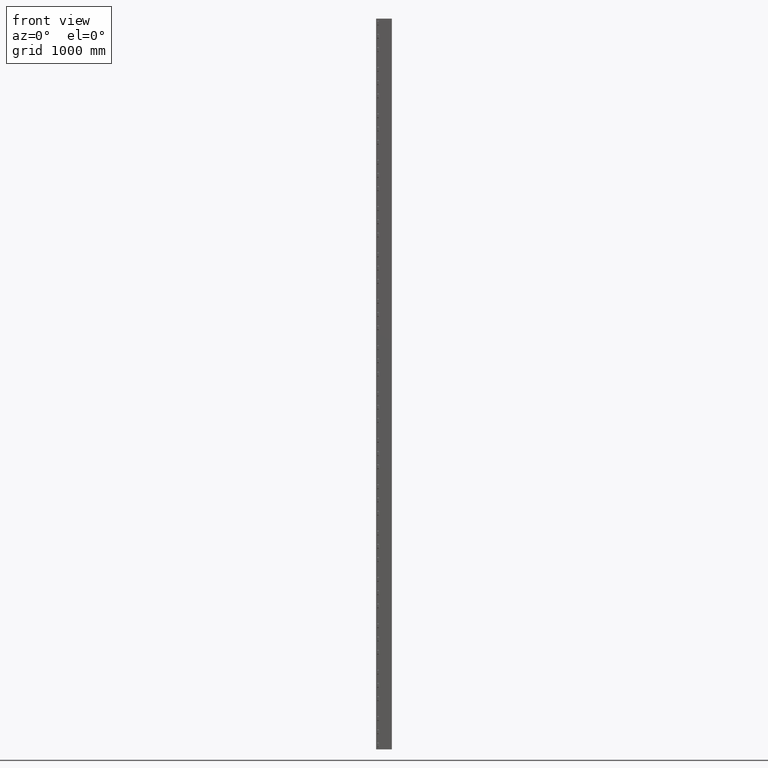
[diagram: clean part render]
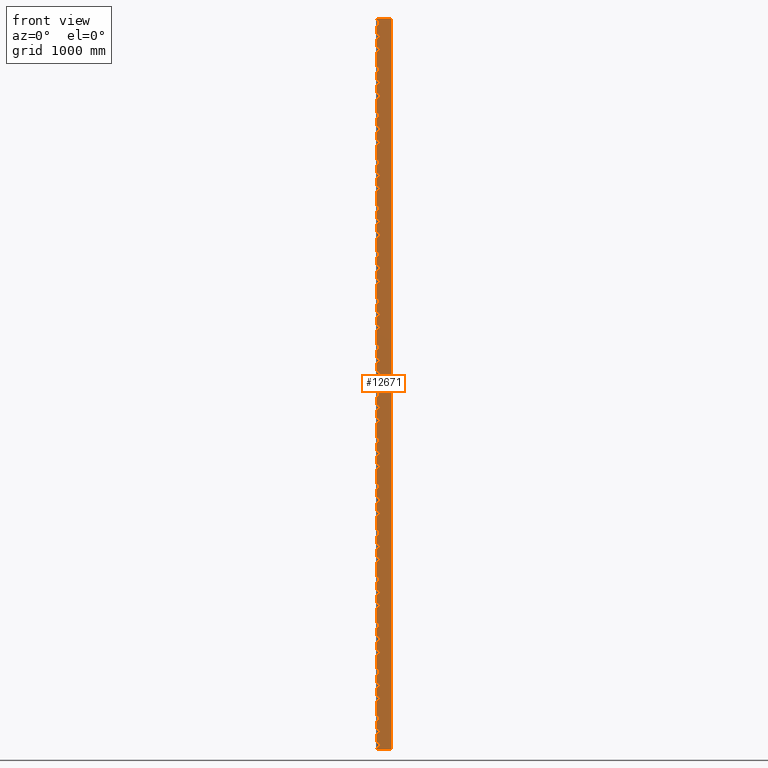
[diagram: same view with one face highlighted and labeled with its STEP entity id]
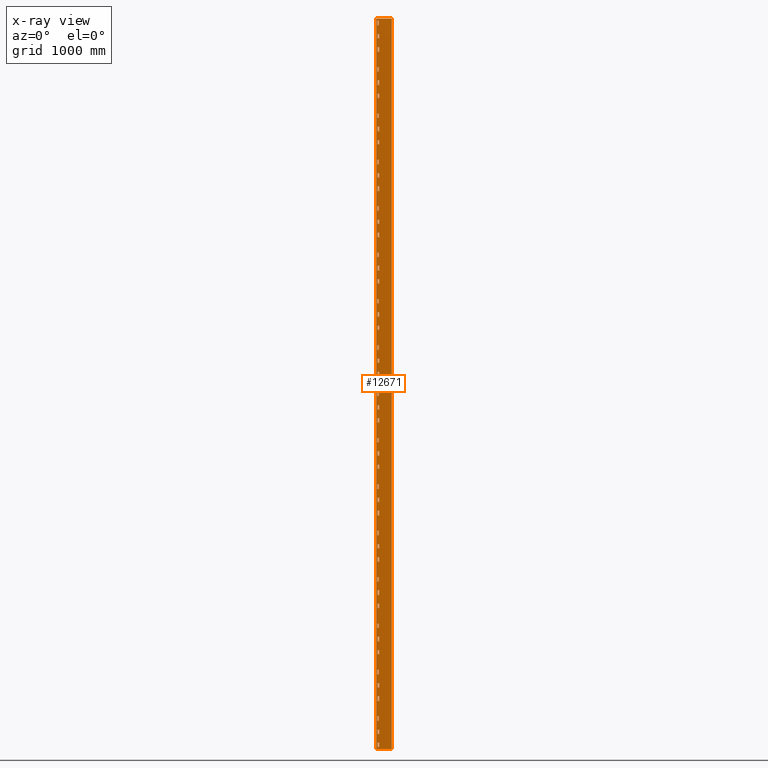
[diagram: x-ray of the same camera — body ghosted, the highlighted face saturated]
A machine part, front view. The second image highlights one B-rep face of the part: STEP entity #12671.
The next image is the same camera in x-ray: the body ghosted, the highlighted face saturated — about 0% of this face is hidden behind the body in this view.
In plain terms, the highlighted planar face has unit normal (0, -1, 0).
Its self-contained STEP definition (entity closure, byte-faithful):
#260=CARTESIAN_POINT('',(6733.0208871467676,6046.4066631202204,-209.50000000000279));
#261=VERTEX_POINT('',#260);
#262=CARTESIAN_POINT('',(6713.0208871467676,6046.4066631202149,-209.50000000000279));
#263=VERTEX_POINT('',#262);
#264=CARTESIAN_POINT('',(6733.0208871467676,6046.4066631202204,-209.50000000000279));
#265=DIRECTION('',(-1.0,-2.728484E-013,0.0));
#266=VECTOR('',#265,20.0);
#267=LINE('',#264,#266);
#268=EDGE_CURVE('',#261,#263,#267,.T.);
#291=CARTESIAN_POINT('',(6733.0208871467676,6046.4066631202204,-269.50000000000358));
#292=VERTEX_POINT('',#291);
#293=CARTESIAN_POINT('',(6733.0208871467676,6046.4066631202204,-269.50000000000358));
#294=DIRECTION('',(0.0,0.0,1.0));
#295=VECTOR('',#294,60.000000000000767);
#296=LINE('',#293,#295);
#297=EDGE_CURVE('',#292,#261,#296,.T.);
#317=CARTESIAN_POINT('',(6713.0208871467676,6046.4066631202149,-269.50000000000358));
#318=VERTEX_POINT('',#317);
#319=CARTESIAN_POINT('',(6713.0208871467676,6046.4066631202149,-269.50000000000358));
#320=DIRECTION('',(1.0,2.728484E-013,0.0));
#321=VECTOR('',#320,20.0);
#322=LINE('',#319,#321);
#323=EDGE_CURVE('',#318,#292,#322,.T.);
#341=CARTESIAN_POINT('',(6713.0208871467676,6046.4066631202149,-209.50000000000279));
#342=DIRECTION('',(0.0,0.0,-1.0));
#343=VECTOR('',#342,60.000000000000739);
#344=LINE('',#341,#343);
#345=EDGE_CURVE('',#263,#318,#344,.T.);
#360=CARTESIAN_POINT('',(6733.0208871467676,6046.4066631202204,-892.50000000000398));
#361=VERTEX_POINT('',#360);
#362=CARTESIAN_POINT('',(6733.0208871467676,6046.4066631202204,-832.50000000000318));
#363=VERTEX_POINT('',#362);
#364=CARTESIAN_POINT('',(6733.0208871467676,6046.4066631202204,-892.50000000000398));
#365=DIRECTION('',(0.0,0.0,1.0));
#366=VECTOR('',#365,60.000000000000796);
#367=LINE('',#364,#366);
#368=EDGE_CURVE('',#361,#363,#367,.T.);
#418=CARTESIAN_POINT('',(6713.0208871467676,6046.4066631202149,-832.50000000000318));
#419=VERTEX_POINT('',#418);
#420=CARTESIAN_POINT('',(6733.0208871467676,6046.4066631202204,-832.50000000000318));
#421=DIRECTION('',(-1.0,-2.728484E-013,0.0));
#422=VECTOR('',#421,20.0);
#423=LINE('',#420,#422);
#424=EDGE_CURVE('',#363,#419,#423,.T.);
#449=CARTESIAN_POINT('',(6713.0208871467676,6046.4066631202149,-892.50000000000398));
#450=VERTEX_POINT('',#449);
#451=CARTESIAN_POINT('',(6713.0208871467676,6046.4066631202149,-832.50000000000318));
#452=DIRECTION('',(0.0,0.0,-1.0));
#453=VECTOR('',#452,60.000000000000909);
#454=LINE('',#451,#453);
#455=EDGE_CURVE('',#419,#450,#454,.T.);
#549=CARTESIAN_POINT('',(6713.0208871467676,6046.4066631202149,-892.50000000000398));
#550=DIRECTION('',(1.0,2.728484E-013,0.0));
#551=VECTOR('',#550,20.0);
#552=LINE('',#549,#551);
#553=EDGE_CURVE('',#450,#361,#552,.T.);
#566=CARTESIAN_POINT('',(6713.0208871467676,6046.4066631202149,-1515.500000000003));
#567=VERTEX_POINT('',#566);
#568=CARTESIAN_POINT('',(6733.0208871467676,6046.4066631202204,-1515.500000000003));
#569=VERTEX_POINT('',#568);
#570=CARTESIAN_POINT('',(6713.0208871467676,6046.4066631202149,-1515.500000000003));
#571=DIRECTION('',(1.0,2.728484E-013,0.0));
#572=VECTOR('',#571,20.0);
#573=LINE('',#570,#572);
#574=EDGE_CURVE('',#567,#569,#573,.T.);
#703=CARTESIAN_POINT('',(6713.0208871467676,6046.4066631202149,-1455.500000000002));
#704=VERTEX_POINT('',#703);
#705=CARTESIAN_POINT('',(6713.0208871467676,6046.4066631202149,-1455.500000000002));
#706=DIRECTION('',(0.0,0.0,-1.0));
#707=VECTOR('',#706,60.000000000000909);
#708=LINE('',#705,#707);
#709=EDGE_CURVE('',#704,#567,#708,.T.);
#729=CARTESIAN_POINT('',(6733.0208871467676,6046.4066631202204,-1455.500000000002));
#730=VERTEX_POINT('',#729);
#731=CARTESIAN_POINT('',(6733.0208871467676,6046.4066631202204,-1455.500000000002));
#732=DIRECTION('',(-1.0,-2.728484E-013,0.0));
#733=VECTOR('',#732,20.0);
#734=LINE('',#731,#733);
#735=EDGE_CURVE('',#730,#704,#734,.T.);
#753=CARTESIAN_POINT('',(6733.0208871467676,6046.4066631202204,-1515.500000000003));
#754=DIRECTION('',(0.0,0.0,1.0));
#755=VECTOR('',#754,60.000000000000909);
#756=LINE('',#753,#755);
#757=EDGE_CURVE('',#569,#730,#756,.T.);
#772=CARTESIAN_POINT('',(6733.0208871467676,6046.4066631202204,-2138.5000000000036));
#773=VERTEX_POINT('',#772);
#774=CARTESIAN_POINT('',(6733.0208871467676,6046.4066631202204,-2078.5000000000027));
#775=VERTEX_POINT('',#774);
#776=CARTESIAN_POINT('',(6733.0208871467676,6046.4066631202204,-2138.5000000000036));
#777=DIRECTION('',(0.0,0.0,1.0));
#778=VECTOR('',#777,60.000000000001364);
#779=LINE('',#776,#778);
#780=EDGE_CURVE('',#773,#775,#779,.T.);
#830=CARTESIAN_POINT('',(6713.0208871467676,6046.4066631202149,-2078.5000000000027));
#831=VERTEX_POINT('',#830);
#832=CARTESIAN_POINT('',(6733.0208871467676,6046.4066631202204,-2078.5000000000027));
#833=DIRECTION('',(-1.0,-2.728484E-013,0.0));
#834=VECTOR('',#833,20.0);
#835=LINE('',#832,#834);
#836=EDGE_CURVE('',#775,#831,#835,.T.);
#861=CARTESIAN_POINT('',(6713.0208871467676,6046.4066631202149,-2138.5000000000036));
#862=VERTEX_POINT('',#861);
#863=CARTESIAN_POINT('',(6713.0208871467676,6046.4066631202149,-2078.5000000000027));
#864=DIRECTION('',(0.0,0.0,-1.0));
#865=VECTOR('',#864,60.000000000001364);
#866=LINE('',#863,#865);
#867=EDGE_CURVE('',#831,#862,#866,.T.);
#961=CARTESIAN_POINT('',(6713.0208871467676,6046.4066631202149,-2138.5000000000036));
#962=DIRECTION('',(1.0,2.728484E-013,0.0));
#963=VECTOR('',#962,20.0);
#964=LINE('',#961,#963);
#965=EDGE_CURVE('',#862,#773,#964,.T.);
#978=CARTESIAN_POINT('',(6713.0208871467676,6046.4066631202149,-2761.5000000000045));
#979=VERTEX_POINT('',#978);
#980=CARTESIAN_POINT('',(6733.0208871467676,6046.4066631202204,-2761.5000000000045));
#981=VERTEX_POINT('',#980);
#982=CARTESIAN_POINT('',(6713.0208871467676,6046.4066631202149,-2761.5000000000045));
#983=DIRECTION('',(1.0,2.728484E-013,0.0));
#984=VECTOR('',#983,20.0);
#985=LINE('',#982,#984);
#986=EDGE_CURVE('',#979,#981,#985,.T.);
#1115=CARTESIAN_POINT('',(6713.0208871467676,6046.4066631202149,-2701.5000000000045));
#1116=VERTEX_POINT('',#1115);
#1117=CARTESIAN_POINT('',(6713.0208871467676,6046.4066631202149,-2701.5000000000045));
#1118=DIRECTION('',(0.0,0.0,-1.0));
#1119=VECTOR('',#1118,60.0);
#1120=LINE('',#1117,#1119);
#1121=EDGE_CURVE('',#1116,#979,#1120,.T.);
#1141=CARTESIAN_POINT('',(6733.0208871467676,6046.4066631202204,-2701.5000000000045));
#1142=VERTEX_POINT('',#1141);
#1143=CARTESIAN_POINT('',(6733.0208871467676,6046.4066631202204,-2701.5000000000045));
#1144=DIRECTION('',(-1.0,-2.728484E-013,0.0));
#1145=VECTOR('',#1144,20.0);
#1146=LINE('',#1143,#1145);
#1147=EDGE_CURVE('',#1142,#1116,#1146,.T.);
#1165=CARTESIAN_POINT('',(6733.0208871467676,6046.4066631202204,-2761.5000000000045));
#1166=DIRECTION('',(0.0,0.0,1.0));
#1167=VECTOR('',#1166,60.0);
#1168=LINE('',#1165,#1167);
#1169=EDGE_CURVE('',#981,#1142,#1168,.T.);
#1184=CARTESIAN_POINT('',(6733.0208871467676,6046.4066631202204,-3384.5000000000027));
#1185=VERTEX_POINT('',#1184);
#1186=CARTESIAN_POINT('',(6733.0208871467676,6046.4066631202204,-3324.5000000000036));
#1187=VERTEX_POINT('',#1186);
#1188=CARTESIAN_POINT('',(6733.0208871467676,6046.4066631202204,-3384.5000000000027));
#1189=DIRECTION('',(0.0,0.0,1.0));
#1190=VECTOR('',#1189,59.999999999998636);
#1191=LINE('',#1188,#1190);
#1192=EDGE_CURVE('',#1185,#1187,#1191,.T.);
#1242=CARTESIAN_POINT('',(6713.0208871467676,6046.4066631202149,-3324.5000000000036));
#1243=VERTEX_POINT('',#1242);
#1244=CARTESIAN_POINT('',(6733.0208871467676,6046.4066631202204,-3324.5000000000036));
#1245=DIRECTION('',(-1.0,-2.728484E-013,0.0));
#1246=VECTOR('',#1245,20.0);
#1247=LINE('',#1244,#1246);
#1248=EDGE_CURVE('',#1187,#1243,#1247,.T.);
#1273=CARTESIAN_POINT('',(6713.0208871467676,6046.4066631202149,-3384.5000000000027));
#1274=VERTEX_POINT('',#1273);
#1275=CARTESIAN_POINT('',(6713.0208871467676,6046.4066631202149,-3324.5000000000036));
#1276=DIRECTION('',(0.0,0.0,-1.0));
#1277=VECTOR('',#1276,59.999999999998636);
#1278=LINE('',#1275,#1277);
#1279=EDGE_CURVE('',#1243,#1274,#1278,.T.);
#1373=CARTESIAN_POINT('',(6713.0208871467676,6046.4066631202149,-3384.5000000000027));
#1374=DIRECTION('',(1.0,2.728484E-013,0.0));
#1375=VECTOR('',#1374,20.0);
#1376=LINE('',#1373,#1375);
#1377=EDGE_CURVE('',#1274,#1185,#1376,.T.);
#1390=CARTESIAN_POINT('',(6713.0208871467676,6046.4066631202149,-4007.5000000000041));
#1391=VERTEX_POINT('',#1390);
#1392=CARTESIAN_POINT('',(6733.0208871467676,6046.4066631202204,-4007.5000000000041));
#1393=VERTEX_POINT('',#1392);
#1394=CARTESIAN_POINT('',(6713.0208871467676,6046.4066631202149,-4007.5000000000041));
#1395=DIRECTION('',(1.0,2.728484E-013,0.0));
#1396=VECTOR('',#1395,20.0);
#1397=LINE('',#1394,#1396);
#1398=EDGE_CURVE('',#1391,#1393,#1397,.T.);
#1527=CARTESIAN_POINT('',(6713.0208871467676,6046.4066631202149,-3947.5000000000036));
#1528=VERTEX_POINT('',#1527);
#1529=CARTESIAN_POINT('',(6713.0208871467676,6046.4066631202149,-3947.5000000000036));
#1530=DIRECTION('',(0.0,0.0,-1.0));
#1531=VECTOR('',#1530,60.0);
#1532=LINE('',#1529,#1531);
#1533=EDGE_CURVE('',#1528,#1391,#1532,.T.);
#1553=CARTESIAN_POINT('',(6733.0208871467676,6046.4066631202204,-3947.5000000000036));
#1554=VERTEX_POINT('',#1553);
#1555=CARTESIAN_POINT('',(6733.0208871467676,6046.4066631202204,-3947.5000000000036));
#1556=DIRECTION('',(-1.0,-2.728484E-013,0.0));
#1557=VECTOR('',#1556,20.0);
#1558=LINE('',#1555,#1557);
#1559=EDGE_CURVE('',#1554,#1528,#1558,.T.);
#1577=CARTESIAN_POINT('',(6733.0208871467676,6046.4066631202204,-4007.5000000000041));
#1578=DIRECTION('',(0.0,0.0,1.0));
#1579=VECTOR('',#1578,60.0);
#1580=LINE('',#1577,#1579);
#1581=EDGE_CURVE('',#1393,#1554,#1580,.T.);
#1596=CARTESIAN_POINT('',(6733.0208871467676,6046.4066631202204,-4630.5000000000036));
#1597=VERTEX_POINT('',#1596);
#1598=CARTESIAN_POINT('',(6733.0208871467676,6046.4066631202204,-4570.5000000000036));
#1599=VERTEX_POINT('',#1598);
#1600=CARTESIAN_POINT('',(6733.0208871467676,6046.4066631202204,-4630.5000000000036));
#1601=DIRECTION('',(0.0,0.0,1.0));
#1602=VECTOR('',#1601,59.999999999999091);
#1603=LINE('',#1600,#1602);
#1604=EDGE_CURVE('',#1597,#1599,#1603,.T.);
#1654=CARTESIAN_POINT('',(6713.0208871467676,6046.4066631202149,-4570.5000000000036));
#1655=VERTEX_POINT('',#1654);
#1656=CARTESIAN_POINT('',(6733.0208871467676,6046.4066631202204,-4570.5000000000036));
#1657=DIRECTION('',(-1.0,-2.728484E-013,0.0));
#1658=VECTOR('',#1657,20.0);
#1659=LINE('',#1656,#1658);
#1660=EDGE_CURVE('',#1599,#1655,#1659,.T.);
#1685=CARTESIAN_POINT('',(6713.0208871467676,6046.4066631202149,-4630.5000000000036));
#1686=VERTEX_POINT('',#1685);
#1687=CARTESIAN_POINT('',(6713.0208871467676,6046.4066631202149,-4570.5000000000036));
#1688=DIRECTION('',(0.0,0.0,-1.0));
#1689=VECTOR('',#1688,59.999999999999091);
#1690=LINE('',#1687,#1689);
#1691=EDGE_CURVE('',#1655,#1686,#1690,.T.);
#1785=CARTESIAN_POINT('',(6713.0208871467676,6046.4066631202149,-4630.5000000000036));
#1786=DIRECTION('',(1.0,2.728484E-013,0.0));
#1787=VECTOR('',#1786,20.0);
#1788=LINE('',#1785,#1787);
#1789=EDGE_CURVE('',#1686,#1597,#1788,.T.);
#1802=CARTESIAN_POINT('',(6713.0208871467676,6046.4066631202149,-5253.5000000000036));
#1803=VERTEX_POINT('',#1802);
#1804=CARTESIAN_POINT('',(6733.0208871467676,6046.4066631202204,-5253.5000000000036));
#1805=VERTEX_POINT('',#1804);
#1806=CARTESIAN_POINT('',(6713.0208871467676,6046.4066631202149,-5253.5000000000036));
#1807=DIRECTION('',(1.0,2.728484E-013,0.0));
#1808=VECTOR('',#1807,20.0);
#1809=LINE('',#1806,#1808);
#1810=EDGE_CURVE('',#1803,#1805,#1809,.T.);
#1939=CARTESIAN_POINT('',(6713.0208871467676,6046.4066631202149,-5193.5000000000045));
#1940=VERTEX_POINT('',#1939);
#1941=CARTESIAN_POINT('',(6713.0208871467676,6046.4066631202149,-5193.5000000000045));
#1942=DIRECTION('',(0.0,0.0,-1.0));
#1943=VECTOR('',#1942,59.999999999999091);
#1944=LINE('',#1941,#1943);
#1945=EDGE_CURVE('',#1940,#1803,#1944,.T.);
#1965=CARTESIAN_POINT('',(6733.0208871467676,6046.4066631202204,-5193.5000000000045));
#1966=VERTEX_POINT('',#1965);
#1967=CARTESIAN_POINT('',(6733.0208871467676,6046.4066631202204,-5193.5000000000045));
#1968=DIRECTION('',(-1.0,-2.728484E-013,0.0));
#1969=VECTOR('',#1968,20.0);
#1970=LINE('',#1967,#1969);
#1971=EDGE_CURVE('',#1966,#1940,#1970,.T.);
#1989=CARTESIAN_POINT('',(6733.0208871467676,6046.4066631202204,-5253.5000000000036));
#1990=DIRECTION('',(0.0,0.0,1.0));
#1991=VECTOR('',#1990,59.999999999999091);
#1992=LINE('',#1989,#1991);
#1993=EDGE_CURVE('',#1805,#1966,#1992,.T.);
#2008=CARTESIAN_POINT('',(6733.0208871467676,6046.4066631202204,-5876.5000000000018));
#2009=VERTEX_POINT('',#2008);
#2010=CARTESIAN_POINT('',(6733.0208871467676,6046.4066631202204,-5816.5000000000018));
#2011=VERTEX_POINT('',#2010);
#2012=CARTESIAN_POINT('',(6733.0208871467676,6046.4066631202204,-5876.5000000000018));
#2013=DIRECTION('',(0.0,0.0,1.0));
#2014=VECTOR('',#2013,60.0);
#2015=LINE('',#2012,#2014);
#2016=EDGE_CURVE('',#2009,#2011,#2015,.T.);
#2066=CARTESIAN_POINT('',(6713.0208871467676,6046.4066631202149,-5816.5000000000018));
#2067=VERTEX_POINT('',#2066);
#2068=CARTESIAN_POINT('',(6733.0208871467676,6046.4066631202204,-5816.5000000000018));
#2069=DIRECTION('',(-1.0,-2.728484E-013,0.0));
#2070=VECTOR('',#2069,20.0);
#2071=LINE('',#2068,#2070);
#2072=EDGE_CURVE('',#2011,#2067,#2071,.T.);
#2097=CARTESIAN_POINT('',(6713.0208871467676,6046.4066631202149,-5876.5000000000018));
#2098=VERTEX_POINT('',#2097);
#2099=CARTESIAN_POINT('',(6713.0208871467676,6046.4066631202149,-5816.5000000000018));
#2100=DIRECTION('',(0.0,0.0,-1.0));
#2101=VECTOR('',#2100,60.0);
#2102=LINE('',#2099,#2101);
#2103=EDGE_CURVE('',#2067,#2098,#2102,.T.);
#2197=CARTESIAN_POINT('',(6713.0208871467676,6046.4066631202149,-5876.5000000000018));
#2198=DIRECTION('',(1.0,2.728484E-013,0.0));
#2199=VECTOR('',#2198,20.0);
#2200=LINE('',#2197,#2199);
#2201=EDGE_CURVE('',#2098,#2009,#2200,.T.);
#2214=CARTESIAN_POINT('',(6713.0208871467676,6046.4066631202149,-6499.5000000000018));
#2215=VERTEX_POINT('',#2214);
#2216=CARTESIAN_POINT('',(6733.0208871467676,6046.4066631202204,-6499.5000000000018));
#2217=VERTEX_POINT('',#2216);
#2218=CARTESIAN_POINT('',(6713.0208871467676,6046.4066631202149,-6499.5000000000018));
#2219=DIRECTION('',(1.0,2.728484E-013,0.0));
#2220=VECTOR('',#2219,20.0);
#2221=LINE('',#2218,#2220);
#2222=EDGE_CURVE('',#2215,#2217,#2221,.T.);
#2351=CARTESIAN_POINT('',(6713.0208871467676,6046.4066631202149,-6439.5000000000036));
#2352=VERTEX_POINT('',#2351);
#2353=CARTESIAN_POINT('',(6713.0208871467676,6046.4066631202149,-6439.5000000000036));
#2354=DIRECTION('',(0.0,0.0,-1.0));
#2355=VECTOR('',#2354,59.999999999998181);
#2356=LINE('',#2353,#2355);
#2357=EDGE_CURVE('',#2352,#2215,#2356,.T.);
#2377=CARTESIAN_POINT('',(6733.0208871467676,6046.4066631202204,-6439.5000000000036));
#2378=VERTEX_POINT('',#2377);
#2379=CARTESIAN_POINT('',(6733.0208871467676,6046.4066631202204,-6439.5000000000036));
#2380=DIRECTION('',(-1.0,-2.728484E-013,0.0));
#2381=VECTOR('',#2380,20.0);
#2382=LINE('',#2379,#2381);
#2383=EDGE_CURVE('',#2378,#2352,#2382,.T.);
#2401=CARTESIAN_POINT('',(6733.0208871467676,6046.4066631202204,-6499.5000000000018));
#2402=DIRECTION('',(0.0,0.0,1.0));
#2403=VECTOR('',#2402,59.999999999998181);
#2404=LINE('',#2401,#2403);
#2405=EDGE_CURVE('',#2217,#2378,#2404,.T.);
#2420=CARTESIAN_POINT('',(6733.0208871467676,6046.4066631202204,-7122.5000000000018));
#2421=VERTEX_POINT('',#2420);
#2422=CARTESIAN_POINT('',(6733.0208871467676,6046.4066631202204,-7062.5000000000018));
#2423=VERTEX_POINT('',#2422);
#2424=CARTESIAN_POINT('',(6733.0208871467676,6046.4066631202204,-7122.5000000000018));
#2425=DIRECTION('',(0.0,0.0,1.0));
#2426=VECTOR('',#2425,59.999999999999091);
#2427=LINE('',#2424,#2426);
#2428=EDGE_CURVE('',#2421,#2423,#2427,.T.);
#2478=CARTESIAN_POINT('',(6713.0208871467676,6046.4066631202149,-7062.5000000000018));
#2479=VERTEX_POINT('',#2478);
#2480=CARTESIAN_POINT('',(6733.0208871467676,6046.4066631202204,-7062.5000000000018));
#2481=DIRECTION('',(-1.0,-2.728484E-013,0.0));
#2482=VECTOR('',#2481,20.0);
#2483=LINE('',#2480,#2482);
#2484=EDGE_CURVE('',#2423,#2479,#2483,.T.);
#2509=CARTESIAN_POINT('',(6713.0208871467676,6046.4066631202149,-7122.5000000000018));
#2510=VERTEX_POINT('',#2509);
#2511=CARTESIAN_POINT('',(6713.0208871467676,6046.4066631202149,-7062.5000000000018));
#2512=DIRECTION('',(0.0,0.0,-1.0));
#2513=VECTOR('',#2512,59.999999999999091);
#2514=LINE('',#2511,#2513);
#2515=EDGE_CURVE('',#2479,#2510,#2514,.T.);
#2609=CARTESIAN_POINT('',(6713.0208871467676,6046.4066631202149,-7122.5000000000018));
#2610=DIRECTION('',(1.0,2.728484E-013,0.0));
#2611=VECTOR('',#2610,20.0);
#2612=LINE('',#2609,#2611);
#2613=EDGE_CURVE('',#2510,#2421,#2612,.T.);
#2626=CARTESIAN_POINT('',(6713.0208871467676,6046.4066631202149,-7745.5000000000036));
#2627=VERTEX_POINT('',#2626);
#2628=CARTESIAN_POINT('',(6733.0208871467676,6046.4066631202204,-7745.5000000000036));
#2629=VERTEX_POINT('',#2628);
#2630=CARTESIAN_POINT('',(6713.0208871467676,6046.4066631202149,-7745.5000000000036));
#2631=DIRECTION('',(1.0,2.728484E-013,0.0));
#2632=VECTOR('',#2631,20.0);
#2633=LINE('',#2630,#2632);
#2634=EDGE_CURVE('',#2627,#2629,#2633,.T.);
#2763=CARTESIAN_POINT('',(6713.0208871467676,6046.4066631202149,-7685.5000000000027));
#2764=VERTEX_POINT('',#2763);
#2765=CARTESIAN_POINT('',(6713.0208871467676,6046.4066631202149,-7685.5000000000027));
#2766=DIRECTION('',(0.0,0.0,-1.0));
#2767=VECTOR('',#2766,60.000000000000909);
#2768=LINE('',#2765,#2767);
#2769=EDGE_CURVE('',#2764,#2627,#2768,.T.);
#2789=CARTESIAN_POINT('',(6733.0208871467676,6046.4066631202204,-7685.5000000000027));
#2790=VERTEX_POINT('',#2789);
#2791=CARTESIAN_POINT('',(6733.0208871467676,6046.4066631202204,-7685.5000000000027));
#2792=DIRECTION('',(-1.0,-2.728484E-013,0.0));
#2793=VECTOR('',#2792,20.0);
#2794=LINE('',#2791,#2793);
#2795=EDGE_CURVE('',#2790,#2764,#2794,.T.);
#2813=CARTESIAN_POINT('',(6733.0208871467676,6046.4066631202204,-7745.5000000000036));
#2814=DIRECTION('',(0.0,0.0,1.0));
#2815=VECTOR('',#2814,60.000000000000909);
#2816=LINE('',#2813,#2815);
#2817=EDGE_CURVE('',#2629,#2790,#2816,.T.);
#2832=CARTESIAN_POINT('',(6733.0208871467676,6046.4066631202204,-8368.5000000000055));
#2833=VERTEX_POINT('',#2832);
#2834=CARTESIAN_POINT('',(6733.0208871467676,6046.4066631202204,-8308.5000000000036));
#2835=VERTEX_POINT('',#2834);
#2836=CARTESIAN_POINT('',(6733.0208871467676,6046.4066631202204,-8368.5000000000055));
#2837=DIRECTION('',(0.0,0.0,1.0));
#2838=VECTOR('',#2837,60.0);
#2839=LINE('',#2836,#2838);
#2840=EDGE_CURVE('',#2833,#2835,#2839,.T.);
#2890=CARTESIAN_POINT('',(6713.0208871467676,6046.4066631202149,-8308.5000000000036));
#2891=VERTEX_POINT('',#2890);
#2892=CARTESIAN_POINT('',(6733.0208871467676,6046.4066631202204,-8308.5000000000036));
#2893=DIRECTION('',(-1.0,-2.728484E-013,0.0));
#2894=VECTOR('',#2893,20.0);
#2895=LINE('',#2892,#2894);
#2896=EDGE_CURVE('',#2835,#2891,#2895,.T.);
#2921=CARTESIAN_POINT('',(6713.0208871467676,6046.4066631202149,-8368.5000000000055));
#2922=VERTEX_POINT('',#2921);
#2923=CARTESIAN_POINT('',(6713.0208871467676,6046.4066631202149,-8308.5000000000036));
#2924=DIRECTION('',(0.0,0.0,-1.0));
#2925=VECTOR('',#2924,60.0);
#2926=LINE('',#2923,#2925);
#2927=EDGE_CURVE('',#2891,#2922,#2926,.T.);
#3021=CARTESIAN_POINT('',(6713.0208871467676,6046.4066631202149,-8368.5000000000055));
#3022=DIRECTION('',(1.0,2.728484E-013,0.0));
#3023=VECTOR('',#3022,20.0);
#3024=LINE('',#3021,#3023);
#3025=EDGE_CURVE('',#2922,#2833,#3024,.T.);
#3038=CARTESIAN_POINT('',(6713.0208871467676,6046.4066631202149,-8991.5000000000036));
#3039=VERTEX_POINT('',#3038);
#3040=CARTESIAN_POINT('',(6733.0208871467676,6046.4066631202204,-8991.5000000000036));
#3041=VERTEX_POINT('',#3040);
#3042=CARTESIAN_POINT('',(6713.0208871467676,6046.4066631202149,-8991.5000000000036));
#3043=DIRECTION('',(1.0,2.728484E-013,0.0));
#3044=VECTOR('',#3043,20.0);
#3045=LINE('',#3042,#3044);
#3046=EDGE_CURVE('',#3039,#3041,#3045,.T.);
#3175=CARTESIAN_POINT('',(6713.0208871467676,6046.4066631202149,-8931.5000000000036));
#3176=VERTEX_POINT('',#3175);
#3177=CARTESIAN_POINT('',(6713.0208871467676,6046.4066631202149,-8931.5000000000036));
#3178=DIRECTION('',(0.0,0.0,-1.0));
#3179=VECTOR('',#3178,60.0);
#3180=LINE('',#3177,#3179);
#3181=EDGE_CURVE('',#3176,#3039,#3180,.T.);
#3201=CARTESIAN_POINT('',(6733.0208871467676,6046.4066631202204,-8931.5000000000036));
#3202=VERTEX_POINT('',#3201);
#3203=CARTESIAN_POINT('',(6733.0208871467676,6046.4066631202204,-8931.5000000000036));
#3204=DIRECTION('',(-1.0,-2.728484E-013,0.0));
#3205=VECTOR('',#3204,20.0);
#3206=LINE('',#3203,#3205);
#3207=EDGE_CURVE('',#3202,#3176,#3206,.T.);
#3225=CARTESIAN_POINT('',(6733.0208871467676,6046.4066631202204,-8991.5000000000036));
#3226=DIRECTION('',(0.0,0.0,1.0));
#3227=VECTOR('',#3226,60.0);
#3228=LINE('',#3225,#3227);
#3229=EDGE_CURVE('',#3041,#3202,#3228,.T.);
#3244=CARTESIAN_POINT('',(6714.7366158992781,6046.4066631202149,-9792.5000000000018));
#3245=VERTEX_POINT('',#3244);
#3246=CARTESIAN_POINT('',(6743.0208871467421,6046.4066631202204,-9792.5000000000018));
#3247=VERTEX_POINT('',#3246);
#3248=CARTESIAN_POINT('',(6714.7366158992781,6046.4066631202149,-9792.5000000000018));
#3249=DIRECTION('',(1.0,2.893994E-013,0.0));
#3250=VECTOR('',#3249,28.284271247464858);
#3251=LINE('',#3248,#3250);
#3252=EDGE_CURVE('',#3245,#3247,#3251,.T.);
#3451=CARTESIAN_POINT('',(6743.0208871467421,6046.4066631202204,-9732.5));
#3452=VERTEX_POINT('',#3451);
#3453=CARTESIAN_POINT('',(6714.7366158992781,6046.4066631202149,-9732.5));
#3454=VERTEX_POINT('',#3453);
#3455=CARTESIAN_POINT('',(6743.0208871467421,6046.4066631202222,-9732.5));
#3456=DIRECTION('',(-1.0,-2.893994E-013,0.0));
#3457=VECTOR('',#3456,28.284271247464858);
#3458=LINE('',#3455,#3457);
#3459=EDGE_CURVE('',#3452,#3454,#3458,.T.);
#3488=CARTESIAN_POINT('',(6743.0208871467421,6046.4066631202204,-9732.5));
#3489=DIRECTION('',(0.0,0.0,-1.0));
#3490=VECTOR('',#3489,60.0);
#3491=LINE('',#3488,#3490);
#3492=EDGE_CURVE('',#3452,#3247,#3491,.T.);
#3503=CARTESIAN_POINT('',(6714.7366158992781,6046.4066631202149,-9732.5));
#3504=DIRECTION('',(0.0,0.0,-1.0));
#3505=VECTOR('',#3504,60.0);
#3506=LINE('',#3503,#3505);
#3507=EDGE_CURVE('',#3454,#3245,#3506,.T.);
#3520=CARTESIAN_POINT('',(6713.0208871467676,6046.4066631202149,-9614.5000000000055));
#3521=VERTEX_POINT('',#3520);
#3522=CARTESIAN_POINT('',(6733.0208871467676,6046.4066631202204,-9614.5000000000055));
#3523=VERTEX_POINT('',#3522);
#3524=CARTESIAN_POINT('',(6713.0208871467676,6046.4066631202149,-9614.5000000000055));
#3525=DIRECTION('',(1.0,2.728484E-013,0.0));
#3526=VECTOR('',#3525,20.0);
#3527=LINE('',#3524,#3526);
#3528=EDGE_CURVE('',#3521,#3523,#3527,.T.);
#3657=CARTESIAN_POINT('',(6713.0208871467676,6046.4066631202149,-9554.5000000000055));
#3658=VERTEX_POINT('',#3657);
#3659=CARTESIAN_POINT('',(6713.0208871467676,6046.4066631202149,-9554.5000000000055));
#3660=DIRECTION('',(0.0,0.0,-1.0));
#3661=VECTOR('',#3660,60.0);
#3662=LINE('',#3659,#3661);
#3663=EDGE_CURVE('',#3658,#3521,#3662,.T.);
#3683=CARTESIAN_POINT('',(6733.0208871467676,6046.4066631202204,-9554.5000000000055));
#3684=VERTEX_POINT('',#3683);
#3685=CARTESIAN_POINT('',(6733.0208871467676,6046.4066631202204,-9554.5000000000055));
#3686=DIRECTION('',(-1.0,-2.728484E-013,0.0));
#3687=VECTOR('',#3686,20.0);
#3688=LINE('',#3685,#3687);
#3689=EDGE_CURVE('',#3684,#3658,#3688,.T.);
#3707=CARTESIAN_POINT('',(6733.0208871467676,6046.4066631202204,-9614.5000000000055));
#3708=DIRECTION('',(0.0,0.0,1.0));
#3709=VECTOR('',#3708,60.0);
#3710=LINE('',#3707,#3709);
#3711=EDGE_CURVE('',#3523,#3684,#3710,.T.);
#3726=CARTESIAN_POINT('',(6714.7366158992781,6046.4066631202149,-9169.5));
#3727=VERTEX_POINT('',#3726);
#3728=CARTESIAN_POINT('',(6743.0208871467421,6046.4066631202204,-9169.5));
#3729=VERTEX_POINT('',#3728);
#3730=CARTESIAN_POINT('',(6714.7366158992781,6046.4066631202149,-9169.5));
#3731=DIRECTION('',(1.0,2.893994E-013,0.0));
#3732=VECTOR('',#3731,28.284271247464858);
#3733=LINE('',#3730,#3732);
#3734=EDGE_CURVE('',#3727,#3729,#3733,.T.);
#3933=CARTESIAN_POINT('',(6743.0208871467421,6046.4066631202204,-9109.4999999999964));
#3934=VERTEX_POINT('',#3933);
#3935=CARTESIAN_POINT('',(6714.7366158992781,6046.4066631202149,-9109.4999999999964));
#3936=VERTEX_POINT('',#3935);
#3937=CARTESIAN_POINT('',(6743.0208871467421,6046.4066631202222,-9109.4999999999964));
#3938=DIRECTION('',(-1.0,-2.893994E-013,0.0));
#3939=VECTOR('',#3938,28.284271247464858);
#3940=LINE('',#3937,#3939);
#3941=EDGE_CURVE('',#3934,#3936,#3940,.T.);
#3970=CARTESIAN_POINT('',(6743.0208871467421,6046.4066631202204,-9109.4999999999964));
#3971=DIRECTION('',(0.0,0.0,-1.0));
#3972=VECTOR('',#3971,60.000000000003638);
#3973=LINE('',#3970,#3972);
#3974=EDGE_CURVE('',#3934,#3729,#3973,.T.);
#3985=CARTESIAN_POINT('',(6714.7366158992781,6046.4066631202149,-9109.4999999999964));
#3986=DIRECTION('',(0.0,0.0,-1.0));
#3987=VECTOR('',#3986,60.000000000003638);
#3988=LINE('',#3985,#3987);
#3989=EDGE_CURVE('',#3936,#3727,#3988,.T.);
#4002=CARTESIAN_POINT('',(6714.7366158992781,6046.4066631202149,-8486.5));
#4003=VERTEX_POINT('',#4002);
#4004=CARTESIAN_POINT('',(6714.7366158992781,6046.4066631202149,-8546.5000000000036));
#4005=VERTEX_POINT('',#4004);
#4006=CARTESIAN_POINT('',(6714.7366158992781,6046.4066631202149,-8486.5));
#4007=DIRECTION('',(0.0,0.0,-1.0));
#4008=VECTOR('',#4007,60.000000000001819);
#4009=LINE('',#4006,#4008);
#4010=EDGE_CURVE('',#4003,#4005,#4009,.T.);
#4054=CARTESIAN_POINT('',(6743.0208871467421,6046.4066631202204,-8546.5000000000036));
#4055=VERTEX_POINT('',#4054);
#4063=CARTESIAN_POINT('',(6743.0208871467421,6046.4066631202204,-8486.5));
#4064=VERTEX_POINT('',#4063);
#4065=CARTESIAN_POINT('',(6743.0208871467421,6046.4066631202204,-8486.5));
#4066=DIRECTION('',(0.0,0.0,-1.0));
#4067=VECTOR('',#4066,60.000000000001819);
#4068=LINE('',#4065,#4067);
#4069=EDGE_CURVE('',#4064,#4055,#4068,.T.);
#4086=CARTESIAN_POINT('',(6743.0208871467421,6046.406663120224,-8486.5));
#4087=DIRECTION('',(-1.0,-2.893994E-013,0.0));
#4088=VECTOR('',#4087,28.284271247464858);
#4089=LINE('',#4086,#4088);
#4090=EDGE_CURVE('',#4064,#4003,#4089,.T.);
#4259=CARTESIAN_POINT('',(6714.7366158992781,6046.4066631202149,-8546.5000000000036));
#4260=DIRECTION('',(1.0,2.893994E-013,0.0));
#4261=VECTOR('',#4260,28.284271247464858);
#4262=LINE('',#4259,#4261);
#4263=EDGE_CURVE('',#4005,#4055,#4262,.T.);
#4278=CARTESIAN_POINT('',(6714.7366158992781,6046.4066631202149,-7923.5000000000018));
#4279=VERTEX_POINT('',#4278);
#4280=CARTESIAN_POINT('',(6743.0208871467421,6046.4066631202204,-7923.5000000000018));
#4281=VERTEX_POINT('',#4280);
#4282=CARTESIAN_POINT('',(6714.7366158992781,6046.4066631202149,-7923.5000000000018));
#4283=DIRECTION('',(1.0,2.893994E-013,0.0));
#4284=VECTOR('',#4283,28.284271247464858);
#4285=LINE('',#4282,#4284);
#4286=EDGE_CURVE('',#4279,#4281,#4285,.T.);
#4485=CARTESIAN_POINT('',(6743.0208871467421,6046.4066631202204,-7863.4999999999982));
#4486=VERTEX_POINT('',#4485);
#4487=CARTESIAN_POINT('',(6714.7366158992781,6046.4066631202149,-7863.4999999999982));
#4488=VERTEX_POINT('',#4487);
#4489=CARTESIAN_POINT('',(6743.0208871467421,6046.406663120224,-7863.4999999999982));
#4490=DIRECTION('',(-1.0,-2.893994E-013,0.0));
#4491=VECTOR('',#4490,28.284271247464858);
#4492=LINE('',#4489,#4491);
#4493=EDGE_CURVE('',#4486,#4488,#4492,.T.);
#4522=CARTESIAN_POINT('',(6743.0208871467421,6046.4066631202204,-7863.4999999999982));
#4523=DIRECTION('',(0.0,0.0,-1.0));
#4524=VECTOR('',#4523,60.000000000003638);
#4525=LINE('',#4522,#4524);
#4526=EDGE_CURVE('',#4486,#4281,#4525,.T.);
#4537=CARTESIAN_POINT('',(6714.7366158992781,6046.4066631202149,-7863.4999999999982));
#4538=DIRECTION('',(0.0,0.0,-1.0));
#4539=VECTOR('',#4538,60.000000000003638);
#4540=LINE('',#4537,#4539);
#4541=EDGE_CURVE('',#4488,#4279,#4540,.T.);
#4554=CARTESIAN_POINT('',(6714.7366158992781,6046.4066631202149,-7240.4999999999973));
#4555=VERTEX_POINT('',#4554);
#4556=CARTESIAN_POINT('',(6714.7366158992781,6046.4066631202149,-7300.4999999999982));
#4557=VERTEX_POINT('',#4556);
#4558=CARTESIAN_POINT('',(6714.7366158992781,6046.4066631202149,-7240.4999999999973));
#4559=DIRECTION('',(0.0,0.0,-1.0));
#4560=VECTOR('',#4559,60.000000000000909);
#4561=LINE('',#4558,#4560);
#4562=EDGE_CURVE('',#4555,#4557,#4561,.T.);
#4606=CARTESIAN_POINT('',(6743.0208871467421,6046.4066631202204,-7300.4999999999982));
#4607=VERTEX_POINT('',#4606);
#4615=CARTESIAN_POINT('',(6743.0208871467421,6046.4066631202204,-7240.4999999999973));
#4616=VERTEX_POINT('',#4615);
#4617=CARTESIAN_POINT('',(6743.0208871467421,6046.4066631202204,-7240.4999999999973));
#4618=DIRECTION('',(0.0,0.0,-1.0));
#4619=VECTOR('',#4618,60.000000000000909);
#4620=LINE('',#4617,#4619);
#4621=EDGE_CURVE('',#4616,#4607,#4620,.T.);
#4638=CARTESIAN_POINT('',(6743.0208871467421,6046.406663120224,-7240.4999999999973));
#4639=DIRECTION('',(-1.0,-2.893994E-013,0.0));
#4640=VECTOR('',#4639,28.284271247464858);
#4641=LINE('',#4638,#4640);
#4642=EDGE_CURVE('',#4616,#4555,#4641,.T.);
#4811=CARTESIAN_POINT('',(6714.7366158992781,6046.4066631202149,-7300.4999999999982));
#4812=DIRECTION('',(1.0,2.893994E-013,0.0));
#4813=VECTOR('',#4812,28.284271247464858);
#4814=LINE('',#4811,#4813);
#4815=EDGE_CURVE('',#4557,#4607,#4814,.T.);
#4830=CARTESIAN_POINT('',(6714.7366158992781,6046.4066631202149,-6677.4999999999982));
#4831=VERTEX_POINT('',#4830);
#4832=CARTESIAN_POINT('',(6743.0208871467421,6046.4066631202204,-6677.4999999999982));
#4833=VERTEX_POINT('',#4832);
#4834=CARTESIAN_POINT('',(6714.7366158992781,6046.4066631202149,-6677.4999999999982));
#4835=DIRECTION('',(1.0,2.893994E-013,0.0));
#4836=VECTOR('',#4835,28.284271247464858);
#4837=LINE('',#4834,#4836);
#4838=EDGE_CURVE('',#4831,#4833,#4837,.T.);
#5037=CARTESIAN_POINT('',(6743.0208871467421,6046.4066631202204,-6617.5));
#5038=VERTEX_POINT('',#5037);
#5039=CARTESIAN_POINT('',(6714.7366158992781,6046.4066631202149,-6617.5));
#5040=VERTEX_POINT('',#5039);
#5041=CARTESIAN_POINT('',(6743.0208871467421,6046.406663120224,-6617.5));
#5042=DIRECTION('',(-1.0,-2.893994E-013,0.0));
#5043=VECTOR('',#5042,28.284271247464858);
#5044=LINE('',#5041,#5043);
#5045=EDGE_CURVE('',#5038,#5040,#5044,.T.);
#5074=CARTESIAN_POINT('',(6743.0208871467421,6046.4066631202204,-6617.5));
#5075=DIRECTION('',(0.0,0.0,-1.0));
#5076=VECTOR('',#5075,59.999999999998181);
#5077=LINE('',#5074,#5076);
#5078=EDGE_CURVE('',#5038,#4833,#5077,.T.);
#5089=CARTESIAN_POINT('',(6714.7366158992781,6046.4066631202149,-6617.5));
#5090=DIRECTION('',(0.0,0.0,-1.0));
#5091=VECTOR('',#5090,59.999999999998181);
#5092=LINE('',#5089,#5091);
#5093=EDGE_CURVE('',#5040,#4831,#5092,.T.);
#5106=CARTESIAN_POINT('',(6714.7366158992781,6046.4066631202149,-5994.4999999999982));
#5107=VERTEX_POINT('',#5106);
#5108=CARTESIAN_POINT('',(6714.7366158992781,6046.4066631202149,-6054.4999999999982));
#5109=VERTEX_POINT('',#5108);
#5110=CARTESIAN_POINT('',(6714.7366158992781,6046.4066631202149,-5994.4999999999982));
#5111=DIRECTION('',(0.0,0.0,-1.0));
#5112=VECTOR('',#5111,60.0);
#5113=LINE('',#5110,#5112);
#5114=EDGE_CURVE('',#5107,#5109,#5113,.T.);
#5158=CARTESIAN_POINT('',(6743.0208871467421,6046.4066631202204,-6054.4999999999982));
#5159=VERTEX_POINT('',#5158);
#5167=CARTESIAN_POINT('',(6743.0208871467421,6046.4066631202204,-5994.4999999999982));
#5168=VERTEX_POINT('',#5167);
#5169=CARTESIAN_POINT('',(6743.0208871467421,6046.4066631202204,-5994.4999999999982));
#5170=DIRECTION('',(0.0,0.0,-1.0));
#5171=VECTOR('',#5170,60.0);
#5172=LINE('',#5169,#5171);
#5173=EDGE_CURVE('',#5168,#5159,#5172,.T.);
#5190=CARTESIAN_POINT('',(6743.0208871467421,6046.406663120224,-5994.4999999999982));
#5191=DIRECTION('',(-1.0,-2.893994E-013,0.0));
#5192=VECTOR('',#5191,28.284271247464858);
#5193=LINE('',#5190,#5192);
#5194=EDGE_CURVE('',#5168,#5107,#5193,.T.);
#5363=CARTESIAN_POINT('',(6714.7366158992781,6046.4066631202149,-6054.4999999999982));
#5364=DIRECTION('',(1.0,2.893994E-013,0.0));
#5365=VECTOR('',#5364,28.284271247464858);
#5366=LINE('',#5363,#5365);
#5367=EDGE_CURVE('',#5109,#5159,#5366,.T.);
#5382=CARTESIAN_POINT('',(6714.7366158992781,6046.4066631202149,-5431.4999999999982));
#5383=VERTEX_POINT('',#5382);
#5384=CARTESIAN_POINT('',(6743.0208871467421,6046.4066631202222,-5431.4999999999982));
#5385=VERTEX_POINT('',#5384);
#5386=CARTESIAN_POINT('',(6714.7366158992781,6046.4066631202149,-5431.4999999999982));
#5387=DIRECTION('',(1.0,2.893994E-013,0.0));
#5388=VECTOR('',#5387,28.284271247464858);
#5389=LINE('',#5386,#5388);
#5390=EDGE_CURVE('',#5383,#5385,#5389,.T.);
#5589=CARTESIAN_POINT('',(6743.0208871467421,6046.4066631202222,-5371.4999999999982));
#5590=VERTEX_POINT('',#5589);
#5591=CARTESIAN_POINT('',(6714.7366158992781,6046.4066631202149,-5371.4999999999982));
#5592=VERTEX_POINT('',#5591);
#5593=CARTESIAN_POINT('',(6743.0208871467421,6046.406663120224,-5371.4999999999982));
#5594=DIRECTION('',(-1.0,-2.893994E-013,0.0));
#5595=VECTOR('',#5594,28.284271247464858);
#5596=LINE('',#5593,#5595);
#5597=EDGE_CURVE('',#5590,#5592,#5596,.T.);
#5626=CARTESIAN_POINT('',(6743.0208871467421,6046.4066631202222,-5371.4999999999982));
#5627=DIRECTION('',(0.0,0.0,-1.0));
#5628=VECTOR('',#5627,60.0);
#5629=LINE('',#5626,#5628);
#5630=EDGE_CURVE('',#5590,#5385,#5629,.T.);
#5641=CARTESIAN_POINT('',(6714.7366158992781,6046.4066631202149,-5371.4999999999982));
#5642=DIRECTION('',(0.0,0.0,-1.0));
#5643=VECTOR('',#5642,60.0);
#5644=LINE('',#5641,#5643);
#5645=EDGE_CURVE('',#5592,#5383,#5644,.T.);
#5658=CARTESIAN_POINT('',(6714.7366158992781,6046.4066631202149,-4748.4999999999982));
#5659=VERTEX_POINT('',#5658);
#5660=CARTESIAN_POINT('',(6714.7366158992781,6046.4066631202149,-4808.4999999999982));
#5661=VERTEX_POINT('',#5660);
#5662=CARTESIAN_POINT('',(6714.7366158992781,6046.4066631202149,-4748.4999999999982));
#5663=DIRECTION('',(0.0,0.0,-1.0));
#5664=VECTOR('',#5663,59.999999999999091);
#5665=LINE('',#5662,#5664);
#5666=EDGE_CURVE('',#5659,#5661,#5665,.T.);
#5710=CARTESIAN_POINT('',(6743.0208871467421,6046.4066631202222,-4808.4999999999982));
#5711=VERTEX_POINT('',#5710);
#5719=CARTESIAN_POINT('',(6743.0208871467421,6046.4066631202222,-4748.4999999999982));
#5720=VERTEX_POINT('',#5719);
#5721=CARTESIAN_POINT('',(6743.0208871467421,6046.4066631202222,-4748.4999999999982));
#5722=DIRECTION('',(0.0,0.0,-1.0));
#5723=VECTOR('',#5722,59.999999999999091);
#5724=LINE('',#5721,#5723);
#5725=EDGE_CURVE('',#5720,#5711,#5724,.T.);
#5742=CARTESIAN_POINT('',(6743.0208871467421,6046.406663120224,-4748.4999999999982));
#5743=DIRECTION('',(-1.0,-2.893994E-013,0.0));
#5744=VECTOR('',#5743,28.284271247464858);
#5745=LINE('',#5742,#5744);
#5746=EDGE_CURVE('',#5720,#5659,#5745,.T.);
#5915=CARTESIAN_POINT('',(6714.7366158992781,6046.4066631202149,-4808.4999999999982));
#5916=DIRECTION('',(1.0,2.893994E-013,0.0));
#5917=VECTOR('',#5916,28.284271247464858);
#5918=LINE('',#5915,#5917);
#5919=EDGE_CURVE('',#5661,#5711,#5918,.T.);
#5934=CARTESIAN_POINT('',(6714.7366158992781,6046.4066631202149,-4185.4999999999991));
#5935=VERTEX_POINT('',#5934);
#5936=CARTESIAN_POINT('',(6743.0208871467421,6046.4066631202222,-4185.4999999999991));
#5937=VERTEX_POINT('',#5936);
#5938=CARTESIAN_POINT('',(6714.7366158992781,6046.4066631202149,-4185.4999999999991));
#5939=DIRECTION('',(1.0,2.893994E-013,0.0));
#5940=VECTOR('',#5939,28.284271247464858);
#5941=LINE('',#5938,#5940);
#5942=EDGE_CURVE('',#5935,#5937,#5941,.T.);
#6141=CARTESIAN_POINT('',(6743.0208871467421,6046.4066631202222,-4125.5));
#6142=VERTEX_POINT('',#6141);
#6143=CARTESIAN_POINT('',(6714.7366158992781,6046.4066631202149,-4125.5));
#6144=VERTEX_POINT('',#6143);
#6145=CARTESIAN_POINT('',(6743.0208871467421,6046.406663120224,-4125.5));
#6146=DIRECTION('',(-1.0,-2.893994E-013,0.0));
#6147=VECTOR('',#6146,28.284271247464858);
#6148=LINE('',#6145,#6147);
#6149=EDGE_CURVE('',#6142,#6144,#6148,.T.);
#6178=CARTESIAN_POINT('',(6743.0208871467421,6046.4066631202222,-4125.5));
#6179=DIRECTION('',(0.0,0.0,-1.0));
#6180=VECTOR('',#6179,59.999999999999091);
#6181=LINE('',#6178,#6180);
#6182=EDGE_CURVE('',#6142,#5937,#6181,.T.);
#6193=CARTESIAN_POINT('',(6714.7366158992781,6046.4066631202149,-4125.5));
#6194=DIRECTION('',(0.0,0.0,-1.0));
#6195=VECTOR('',#6194,59.999999999999091);
#6196=LINE('',#6193,#6195);
#6197=EDGE_CURVE('',#6144,#5935,#6196,.T.);
#6210=CARTESIAN_POINT('',(6714.7366158992781,6046.4066631202149,-3502.4999999999991));
#6211=VERTEX_POINT('',#6210);
#6212=CARTESIAN_POINT('',(6714.7366158992781,6046.4066631202149,-3562.4999999999995));
#6213=VERTEX_POINT('',#6212);
#6214=CARTESIAN_POINT('',(6714.7366158992781,6046.4066631202149,-3502.4999999999991));
#6215=DIRECTION('',(0.0,0.0,-1.0));
#6216=VECTOR('',#6215,60.0);
#6217=LINE('',#6214,#6216);
#6218=EDGE_CURVE('',#6211,#6213,#6217,.T.);
#6262=CARTESIAN_POINT('',(6743.0208871467421,6046.4066631202222,-3562.4999999999995));
#6263=VERTEX_POINT('',#6262);
#6271=CARTESIAN_POINT('',(6743.0208871467421,6046.4066631202222,-3502.4999999999991));
#6272=VERTEX_POINT('',#6271);
#6273=CARTESIAN_POINT('',(6743.0208871467421,6046.4066631202222,-3502.4999999999991));
#6274=DIRECTION('',(0.0,0.0,-1.0));
#6275=VECTOR('',#6274,60.0);
#6276=LINE('',#6273,#6275);
#6277=EDGE_CURVE('',#6272,#6263,#6276,.T.);
#6294=CARTESIAN_POINT('',(6743.0208871467421,6046.406663120224,-3502.4999999999991));
#6295=DIRECTION('',(-1.0,-2.893994E-013,0.0));
#6296=VECTOR('',#6295,28.284271247464858);
#6297=LINE('',#6294,#6296);
#6298=EDGE_CURVE('',#6272,#6211,#6297,.T.);
#6467=CARTESIAN_POINT('',(6714.7366158992781,6046.4066631202149,-3562.4999999999995));
#6468=DIRECTION('',(1.0,2.893994E-013,0.0));
#6469=VECTOR('',#6468,28.284271247464858);
#6470=LINE('',#6467,#6469);
#6471=EDGE_CURVE('',#6213,#6263,#6470,.T.);
#6486=CARTESIAN_POINT('',(6714.7366158992781,6046.4066631202149,-2939.4999999999991));
#6487=VERTEX_POINT('',#6486);
#6488=CARTESIAN_POINT('',(6743.0208871467421,6046.4066631202222,-2939.4999999999991));
#6489=VERTEX_POINT('',#6488);
#6490=CARTESIAN_POINT('',(6714.7366158992781,6046.4066631202149,-2939.4999999999991));
#6491=DIRECTION('',(1.0,2.893994E-013,0.0));
#6492=VECTOR('',#6491,28.284271247464858);
#6493=LINE('',#6490,#6492);
#6494=EDGE_CURVE('',#6487,#6489,#6493,.T.);
#6693=CARTESIAN_POINT('',(6743.0208871467421,6046.4066631202222,-2879.4999999999991));
#6694=VERTEX_POINT('',#6693);
#6695=CARTESIAN_POINT('',(6714.7366158992781,6046.4066631202149,-2879.4999999999991));
#6696=VERTEX_POINT('',#6695);
#6697=CARTESIAN_POINT('',(6743.0208871467421,6046.406663120224,-2879.4999999999991));
#6698=DIRECTION('',(-1.0,-2.893994E-013,0.0));
#6699=VECTOR('',#6698,28.284271247464858);
#6700=LINE('',#6697,#6699);
#6701=EDGE_CURVE('',#6694,#6696,#6700,.T.);
#6730=CARTESIAN_POINT('',(6743.0208871467421,6046.4066631202222,-2879.4999999999991));
#6731=DIRECTION('',(0.0,0.0,-1.0));
#6732=VECTOR('',#6731,60.0);
#6733=LINE('',#6730,#6732);
#6734=EDGE_CURVE('',#6694,#6489,#6733,.T.);
#6745=CARTESIAN_POINT('',(6714.7366158992781,6046.4066631202149,-2879.4999999999991));
#6746=DIRECTION('',(0.0,0.0,-1.0));
#6747=VECTOR('',#6746,60.0);
#6748=LINE('',#6745,#6747);
#6749=EDGE_CURVE('',#6696,#6487,#6748,.T.);
#6762=CARTESIAN_POINT('',(6714.7366158992781,6046.4066631202149,-2256.4999999999995));
#6763=VERTEX_POINT('',#6762);
#6764=CARTESIAN_POINT('',(6714.7366158992781,6046.4066631202149,-2316.4999999999991));
#6765=VERTEX_POINT('',#6764);
#6766=CARTESIAN_POINT('',(6714.7366158992781,6046.4066631202149,-2256.4999999999995));
#6767=DIRECTION('',(0.0,0.0,-1.0));
#6768=VECTOR('',#6767,60.0);
#6769=LINE('',#6766,#6768);
#6770=EDGE_CURVE('',#6763,#6765,#6769,.T.);
#6814=CARTESIAN_POINT('',(6743.0208871467421,6046.4066631202222,-2316.4999999999991));
#6815=VERTEX_POINT('',#6814);
#6823=CARTESIAN_POINT('',(6743.0208871467421,6046.4066631202222,-2256.4999999999995));
#6824=VERTEX_POINT('',#6823);
#6825=CARTESIAN_POINT('',(6743.0208871467421,6046.4066631202222,-2256.4999999999995));
#6826=DIRECTION('',(0.0,0.0,-1.0));
#6827=VECTOR('',#6826,60.0);
#6828=LINE('',#6825,#6827);
#6829=EDGE_CURVE('',#6824,#6815,#6828,.T.);
#6846=CARTESIAN_POINT('',(6743.0208871467421,6046.406663120224,-2256.4999999999995));
#6847=DIRECTION('',(-1.0,-2.893994E-013,0.0));
#6848=VECTOR('',#6847,28.284271247464858);
#6849=LINE('',#6846,#6848);
#6850=EDGE_CURVE('',#6824,#6763,#6849,.T.);
#7019=CARTESIAN_POINT('',(6714.7366158992781,6046.4066631202149,-2316.4999999999991));
#7020=DIRECTION('',(1.0,2.893994E-013,0.0));
#7021=VECTOR('',#7020,28.284271247464858);
#7022=LINE('',#7019,#7021);
#7023=EDGE_CURVE('',#6765,#6815,#7022,.T.);
#7038=CARTESIAN_POINT('',(6714.7366158992781,6046.4066631202149,-1693.4999999999989));
#7039=VERTEX_POINT('',#7038);
#7040=CARTESIAN_POINT('',(6743.0208871467421,6046.4066631202222,-1693.4999999999989));
#7041=VERTEX_POINT('',#7040);
#7042=CARTESIAN_POINT('',(6714.7366158992781,6046.4066631202149,-1693.4999999999989));
#7043=DIRECTION('',(1.0,2.893994E-013,0.0));
#7044=VECTOR('',#7043,28.284271247464858);
#7045=LINE('',#7042,#7044);
#7046=EDGE_CURVE('',#7039,#7041,#7045,.T.);
#7245=CARTESIAN_POINT('',(6743.0208871467421,6046.4066631202222,-1633.4999999999995));
#7246=VERTEX_POINT('',#7245);
#7247=CARTESIAN_POINT('',(6714.7366158992781,6046.4066631202149,-1633.4999999999995));
#7248=VERTEX_POINT('',#7247);
#7249=CARTESIAN_POINT('',(6743.0208871467421,6046.406663120224,-1633.4999999999995));
#7250=DIRECTION('',(-1.0,-2.893994E-013,0.0));
#7251=VECTOR('',#7250,28.284271247464858);
#7252=LINE('',#7249,#7251);
#7253=EDGE_CURVE('',#7246,#7248,#7252,.T.);
#7282=CARTESIAN_POINT('',(6743.0208871467421,6046.4066631202222,-1633.4999999999995));
#7283=DIRECTION('',(0.0,0.0,-1.0));
#7284=VECTOR('',#7283,59.999999999999091);
#7285=LINE('',#7282,#7284);
#7286=EDGE_CURVE('',#7246,#7041,#7285,.T.);
#7297=CARTESIAN_POINT('',(6714.7366158992781,6046.4066631202149,-1633.4999999999995));
#7298=DIRECTION('',(0.0,0.0,-1.0));
#7299=VECTOR('',#7298,59.999999999999091);
#7300=LINE('',#7297,#7299);
#7301=EDGE_CURVE('',#7248,#7039,#7300,.T.);
#7314=CARTESIAN_POINT('',(6714.7366158992781,6046.4066631202149,-1010.499999999999));
#7315=VERTEX_POINT('',#7314);
#7316=CARTESIAN_POINT('',(6714.7366158992781,6046.4066631202149,-1070.4999999999991));
#7317=VERTEX_POINT('',#7316);
#7318=CARTESIAN_POINT('',(6714.7366158992781,6046.4066631202149,-1010.499999999999));
#7319=DIRECTION('',(0.0,0.0,-1.0));
#7320=VECTOR('',#7319,59.999999999999886);
#7321=LINE('',#7318,#7320);
#7322=EDGE_CURVE('',#7315,#7317,#7321,.T.);
#7366=CARTESIAN_POINT('',(6743.0208871467421,6046.4066631202222,-1070.4999999999991));
#7367=VERTEX_POINT('',#7366);
#7375=CARTESIAN_POINT('',(6743.0208871467421,6046.4066631202222,-1010.499999999999));
#7376=VERTEX_POINT('',#7375);
#7377=CARTESIAN_POINT('',(6743.0208871467421,6046.4066631202222,-1010.499999999999));
#7378=DIRECTION('',(0.0,0.0,-1.0));
#7379=VECTOR('',#7378,59.999999999999886);
#7380=LINE('',#7377,#7379);
#7381=EDGE_CURVE('',#7376,#7367,#7380,.T.);
#7398=CARTESIAN_POINT('',(6743.0208871467421,6046.406663120224,-1010.499999999999));
#7399=DIRECTION('',(-1.0,-2.893994E-013,0.0));
#7400=VECTOR('',#7399,28.284271247464858);
#7401=LINE('',#7398,#7400);
#7402=EDGE_CURVE('',#7376,#7315,#7401,.T.);
#7571=CARTESIAN_POINT('',(6714.7366158992781,6046.4066631202149,-1070.4999999999993));
#7572=DIRECTION('',(1.0,2.893994E-013,0.0));
#7573=VECTOR('',#7572,28.284271247464858);
#7574=LINE('',#7571,#7573);
#7575=EDGE_CURVE('',#7317,#7367,#7574,.T.);
#7590=CARTESIAN_POINT('',(6714.7366158992781,6046.4066631202149,-447.49999999999898));
#7591=VERTEX_POINT('',#7590);
#7592=CARTESIAN_POINT('',(6743.0208871467421,6046.4066631202222,-447.49999999999898));
#7593=VERTEX_POINT('',#7592);
#7594=CARTESIAN_POINT('',(6714.7366158992781,6046.4066631202149,-447.49999999999898));
#7595=DIRECTION('',(1.0,2.893994E-013,0.0));
#7596=VECTOR('',#7595,28.284271247464858);
#7597=LINE('',#7594,#7596);
#7598=EDGE_CURVE('',#7591,#7593,#7597,.T.);
#7797=CARTESIAN_POINT('',(6743.0208871467421,6046.4066631202222,-387.49999999999892));
#7798=VERTEX_POINT('',#7797);
#7799=CARTESIAN_POINT('',(6714.7366158992781,6046.4066631202149,-387.49999999999892));
#7800=VERTEX_POINT('',#7799);
#7801=CARTESIAN_POINT('',(6743.0208871467421,6046.406663120224,-387.49999999999892));
#7802=DIRECTION('',(-1.0,-2.893994E-013,0.0));
#7803=VECTOR('',#7802,28.284271247464858);
#7804=LINE('',#7801,#7803);
#7805=EDGE_CURVE('',#7798,#7800,#7804,.T.);
#7834=CARTESIAN_POINT('',(6743.0208871467421,6046.4066631202222,-387.49999999999892));
#7835=DIRECTION('',(0.0,0.0,-1.0));
#7836=VECTOR('',#7835,60.000000000000057);
#7837=LINE('',#7834,#7836);
#7838=EDGE_CURVE('',#7798,#7593,#7837,.T.);
#7849=CARTESIAN_POINT('',(6714.7366158992781,6046.4066631202149,-387.49999999999892));
#7850=DIRECTION('',(0.0,0.0,-1.0));
#7851=VECTOR('',#7850,60.000000000000057);
#7852=LINE('',#7849,#7851);
#7853=EDGE_CURVE('',#7800,#7591,#7852,.T.);
#7866=CARTESIAN_POINT('',(6714.7366158991881,6046.4066631202149,-565.49999999995362));
#7867=VERTEX_POINT('',#7866);
#7868=CARTESIAN_POINT('',(6714.7366158991881,6046.4066631202149,-625.49999999995373));
#7869=VERTEX_POINT('',#7868);
#7870=CARTESIAN_POINT('',(6714.7366158991881,6046.4066631202149,-565.49999999995362));
#7871=DIRECTION('',(0.0,0.0,-1.0));
#7872=VECTOR('',#7871,60.0);
#7873=LINE('',#7870,#7872);
#7874=EDGE_CURVE('',#7867,#7869,#7873,.T.);
#7918=CARTESIAN_POINT('',(6743.020887146673,6046.4066631202713,-625.49999999995373));
#7919=VERTEX_POINT('',#7918);
#7927=CARTESIAN_POINT('',(6743.020887146673,6046.4066631202713,-565.49999999995362));
#7928=VERTEX_POINT('',#7927);
#7929=CARTESIAN_POINT('',(6743.020887146673,6046.4066631202713,-565.49999999995362));
#7930=DIRECTION('',(0.0,0.0,-1.0));
#7931=VECTOR('',#7930,60.0);
#7932=LINE('',#7929,#7931);
#7933=EDGE_CURVE('',#7928,#7919,#7932,.T.);
#7950=CARTESIAN_POINT('',(6743.020887146673,6046.406663120224,-565.49999999995362));
#7951=DIRECTION('',(-1.0,-2.893994E-013,0.0));
#7952=VECTOR('',#7951,28.284271247484867);
#7953=LINE('',#7950,#7952);
#7954=EDGE_CURVE('',#7928,#7867,#7953,.T.);
#8123=CARTESIAN_POINT('',(6714.7366158991881,6046.4066631202149,-625.49999999995373));
#8124=DIRECTION('',(1.0,2.893994E-013,0.0));
#8125=VECTOR('',#8124,28.284271247484867);
#8126=LINE('',#8123,#8125);
#8127=EDGE_CURVE('',#7869,#7919,#8126,.T.);
#8142=CARTESIAN_POINT('',(6714.7366158991881,6046.4066631202149,-1248.4999999999538));
#8143=VERTEX_POINT('',#8142);
#8144=CARTESIAN_POINT('',(6743.020887146673,6046.4066631202713,-1248.4999999999538));
#8145=VERTEX_POINT('',#8144);
#8146=CARTESIAN_POINT('',(6714.7366158991881,6046.4066631202149,-1248.4999999999538));
#8147=DIRECTION('',(1.0,2.893994E-013,0.0));
#8148=VECTOR('',#8147,28.284271247484867);
#8149=LINE('',#8146,#8148);
#8150=EDGE_CURVE('',#8143,#8145,#8149,.T.);
#8349=CARTESIAN_POINT('',(6743.020887146673,6046.4066631202713,-1188.4999999999538));
#8350=VERTEX_POINT('',#8349);
#8351=CARTESIAN_POINT('',(6714.7366158991881,6046.4066631202149,-1188.4999999999538));
#8352=VERTEX_POINT('',#8351);
#8353=CARTESIAN_POINT('',(6743.020887146673,6046.406663120224,-1188.4999999999538));
#8354=DIRECTION('',(-1.0,-2.893994E-013,0.0));
#8355=VECTOR('',#8354,28.284271247484867);
#8356=LINE('',#8353,#8355);
#8357=EDGE_CURVE('',#8350,#8352,#8356,.T.);
#8386=CARTESIAN_POINT('',(6743.020887146673,6046.4066631202713,-1188.4999999999538));
#8387=DIRECTION('',(0.0,0.0,-1.0));
#8388=VECTOR('',#8387,60.0);
#8389=LINE('',#8386,#8388);
#8390=EDGE_CURVE('',#8350,#8145,#8389,.T.);
#8401=CARTESIAN_POINT('',(6714.7366158991881,6046.4066631202149,-1188.4999999999538));
#8402=DIRECTION('',(0.0,0.0,-1.0));
#8403=VECTOR('',#8402,60.0);
#8404=LINE('',#8401,#8403);
#8405=EDGE_CURVE('',#8352,#8143,#8404,.T.);
#8418=CARTESIAN_POINT('',(6714.7366158991881,6046.4066631202149,-1811.4999999999536));
#8419=VERTEX_POINT('',#8418);
#8420=CARTESIAN_POINT('',(6714.7366158991881,6046.4066631202149,-1871.4999999999532));
#8421=VERTEX_POINT('',#8420);
#8422=CARTESIAN_POINT('',(6714.7366158991881,6046.4066631202149,-1811.4999999999536));
#8423=DIRECTION('',(0.0,0.0,-1.0));
#8424=VECTOR('',#8423,59.999999999999545);
#8425=LINE('',#8422,#8424);
#8426=EDGE_CURVE('',#8419,#8421,#8425,.T.);
#8470=CARTESIAN_POINT('',(6743.020887146673,6046.4066631202713,-1871.4999999999532));
#8471=VERTEX_POINT('',#8470);
#8479=CARTESIAN_POINT('',(6743.020887146673,6046.4066631202713,-1811.4999999999536));
#8480=VERTEX_POINT('',#8479);
#8481=CARTESIAN_POINT('',(6743.020887146673,6046.4066631202713,-1811.4999999999536));
#8482=DIRECTION('',(0.0,0.0,-1.0));
#8483=VECTOR('',#8482,59.999999999999545);
#8484=LINE('',#8481,#8483);
#8485=EDGE_CURVE('',#8480,#8471,#8484,.T.);
#8502=CARTESIAN_POINT('',(6743.020887146673,6046.406663120224,-1811.4999999999536));
#8503=DIRECTION('',(-1.0,-2.893994E-013,0.0));
#8504=VECTOR('',#8503,28.284271247484867);
#8505=LINE('',#8502,#8504);
#8506=EDGE_CURVE('',#8480,#8419,#8505,.T.);
#8675=CARTESIAN_POINT('',(6714.7366158991881,6046.4066631202149,-1871.4999999999532));
#8676=DIRECTION('',(1.0,2.893994E-013,0.0));
#8677=VECTOR('',#8676,28.284271247484867);
#8678=LINE('',#8675,#8677);
#8679=EDGE_CURVE('',#8421,#8471,#8678,.T.);
#8694=CARTESIAN_POINT('',(6714.7366158991881,6046.4066631202149,-2494.4999999999536));
#8695=VERTEX_POINT('',#8694);
#8696=CARTESIAN_POINT('',(6743.020887146673,6046.4066631202713,-2494.4999999999536));
#8697=VERTEX_POINT('',#8696);
#8698=CARTESIAN_POINT('',(6714.7366158991881,6046.4066631202149,-2494.4999999999536));
#8699=DIRECTION('',(1.0,2.893994E-013,0.0));
#8700=VECTOR('',#8699,28.284271247484867);
#8701=LINE('',#8698,#8700);
#8702=EDGE_CURVE('',#8695,#8697,#8701,.T.);
#8901=CARTESIAN_POINT('',(6743.020887146673,6046.4066631202713,-2434.4999999999536));
#8902=VERTEX_POINT('',#8901);
#8903=CARTESIAN_POINT('',(6714.7366158991881,6046.4066631202149,-2434.4999999999536));
#8904=VERTEX_POINT('',#8903);
#8905=CARTESIAN_POINT('',(6743.020887146673,6046.406663120224,-2434.4999999999536));
#8906=DIRECTION('',(-1.0,-2.893994E-013,0.0));
#8907=VECTOR('',#8906,28.284271247484867);
#8908=LINE('',#8905,#8907);
#8909=EDGE_CURVE('',#8902,#8904,#8908,.T.);
#8938=CARTESIAN_POINT('',(6743.020887146673,6046.4066631202713,-2434.4999999999536));
#8939=DIRECTION('',(0.0,0.0,-1.0));
#8940=VECTOR('',#8939,60.0);
#8941=LINE('',#8938,#8940);
#8942=EDGE_CURVE('',#8902,#8697,#8941,.T.);
#8953=CARTESIAN_POINT('',(6714.7366158991881,6046.4066631202149,-2434.4999999999536));
#8954=DIRECTION('',(0.0,0.0,-1.0));
#8955=VECTOR('',#8954,60.0);
#8956=LINE('',#8953,#8955);
#8957=EDGE_CURVE('',#8904,#8695,#8956,.T.);
#8970=CARTESIAN_POINT('',(6714.7366158991881,6046.4066631202149,-3057.4999999999541));
#8971=VERTEX_POINT('',#8970);
#8972=CARTESIAN_POINT('',(6714.7366158991881,6046.4066631202149,-3117.4999999999527));
#8973=VERTEX_POINT('',#8972);
#8974=CARTESIAN_POINT('',(6714.7366158991881,6046.4066631202149,-3057.4999999999541));
#8975=DIRECTION('',(0.0,0.0,-1.0));
#8976=VECTOR('',#8975,59.999999999998636);
#8977=LINE('',#8974,#8976);
#8978=EDGE_CURVE('',#8971,#8973,#8977,.T.);
#9022=CARTESIAN_POINT('',(6743.020887146673,6046.4066631202713,-3117.4999999999527));
#9023=VERTEX_POINT('',#9022);
#9031=CARTESIAN_POINT('',(6743.020887146673,6046.4066631202713,-3057.4999999999541));
#9032=VERTEX_POINT('',#9031);
#9033=CARTESIAN_POINT('',(6743.020887146673,6046.4066631202713,-3057.4999999999541));
#9034=DIRECTION('',(0.0,0.0,-1.0));
#9035=VECTOR('',#9034,59.999999999998636);
#9036=LINE('',#9033,#9035);
#9037=EDGE_CURVE('',#9032,#9023,#9036,.T.);
#9054=CARTESIAN_POINT('',(6743.020887146673,6046.406663120224,-3057.4999999999541));
#9055=DIRECTION('',(-1.0,-2.893994E-013,0.0));
#9056=VECTOR('',#9055,28.284271247484867);
#9057=LINE('',#9054,#9056);
#9058=EDGE_CURVE('',#9032,#8971,#9057,.T.);
#9227=CARTESIAN_POINT('',(6714.7366158991881,6046.4066631202149,-3117.4999999999527));
#9228=DIRECTION('',(1.0,2.893994E-013,0.0));
#9229=VECTOR('',#9228,28.284271247484867);
#9230=LINE('',#9227,#9229);
#9231=EDGE_CURVE('',#8973,#9023,#9230,.T.);
#9246=CARTESIAN_POINT('',(6714.7366158991881,6046.4066631202149,-3740.4999999999527));
#9247=VERTEX_POINT('',#9246);
#9248=CARTESIAN_POINT('',(6743.020887146673,6046.4066631202713,-3740.4999999999527));
#9249=VERTEX_POINT('',#9248);
#9250=CARTESIAN_POINT('',(6714.7366158991881,6046.4066631202149,-3740.4999999999527));
#9251=DIRECTION('',(1.0,2.893994E-013,0.0));
#9252=VECTOR('',#9251,28.284271247484867);
#9253=LINE('',#9250,#9252);
#9254=EDGE_CURVE('',#9247,#9249,#9253,.T.);
#9453=CARTESIAN_POINT('',(6743.020887146673,6046.4066631202713,-3680.4999999999541));
#9454=VERTEX_POINT('',#9453);
#9455=CARTESIAN_POINT('',(6714.7366158991881,6046.4066631202149,-3680.4999999999541));
#9456=VERTEX_POINT('',#9455);
#9457=CARTESIAN_POINT('',(6743.020887146673,6046.406663120224,-3680.4999999999541));
#9458=DIRECTION('',(-1.0,-2.893994E-013,0.0));
#9459=VECTOR('',#9458,28.284271247484867);
#9460=LINE('',#9457,#9459);
#9461=EDGE_CURVE('',#9454,#9456,#9460,.T.);
#9490=CARTESIAN_POINT('',(6743.020887146673,6046.4066631202713,-3680.4999999999541));
#9491=DIRECTION('',(0.0,0.0,-1.0));
#9492=VECTOR('',#9491,59.999999999999545);
#9493=LINE('',#9490,#9492);
#9494=EDGE_CURVE('',#9454,#9249,#9493,.T.);
#9505=CARTESIAN_POINT('',(6714.7366158991881,6046.4066631202149,-3680.4999999999541));
#9506=DIRECTION('',(0.0,0.0,-1.0));
#9507=VECTOR('',#9506,59.999999999999545);
#9508=LINE('',#9505,#9507);
#9509=EDGE_CURVE('',#9456,#9247,#9508,.T.);
#9522=CARTESIAN_POINT('',(6714.7366158991881,6046.4066631202149,-4303.4999999999545));
#9523=VERTEX_POINT('',#9522);
#9524=CARTESIAN_POINT('',(6714.7366158991881,6046.4066631202149,-4363.4999999999536));
#9525=VERTEX_POINT('',#9524);
#9526=CARTESIAN_POINT('',(6714.7366158991881,6046.4066631202149,-4303.4999999999545));
#9527=DIRECTION('',(0.0,0.0,-1.0));
#9528=VECTOR('',#9527,59.999999999999091);
#9529=LINE('',#9526,#9528);
#9530=EDGE_CURVE('',#9523,#9525,#9529,.T.);
#9574=CARTESIAN_POINT('',(6743.020887146673,6046.4066631202713,-4363.4999999999536));
#9575=VERTEX_POINT('',#9574);
#9583=CARTESIAN_POINT('',(6743.020887146673,6046.4066631202713,-4303.4999999999545));
#9584=VERTEX_POINT('',#9583);
#9585=CARTESIAN_POINT('',(6743.020887146673,6046.4066631202713,-4303.4999999999545));
#9586=DIRECTION('',(0.0,0.0,-1.0));
#9587=VECTOR('',#9586,59.999999999999091);
#9588=LINE('',#9585,#9587);
#9589=EDGE_CURVE('',#9584,#9575,#9588,.T.);
#9606=CARTESIAN_POINT('',(6743.020887146673,6046.4066631202222,-4303.4999999999545));
#9607=DIRECTION('',(-1.0,-2.893994E-013,0.0));
#9608=VECTOR('',#9607,28.284271247484867);
#9609=LINE('',#9606,#9608);
#9610=EDGE_CURVE('',#9584,#9523,#9609,.T.);
#9779=CARTESIAN_POINT('',(6714.7366158991881,6046.4066631202149,-4363.4999999999536));
#9780=DIRECTION('',(1.0,2.893994E-013,0.0));
#9781=VECTOR('',#9780,28.284271247484867);
#9782=LINE('',#9779,#9781);
#9783=EDGE_CURVE('',#9525,#9575,#9782,.T.);
#9798=CARTESIAN_POINT('',(6714.7366158991881,6046.4066631202149,-4986.4999999999527));
#9799=VERTEX_POINT('',#9798);
#9800=CARTESIAN_POINT('',(6743.020887146673,6046.4066631202713,-4986.4999999999527));
#9801=VERTEX_POINT('',#9800);
#9802=CARTESIAN_POINT('',(6714.7366158991881,6046.4066631202149,-4986.4999999999527));
#9803=DIRECTION('',(1.0,2.893994E-013,0.0));
#9804=VECTOR('',#9803,28.284271247484867);
#9805=LINE('',#9802,#9804);
#9806=EDGE_CURVE('',#9799,#9801,#9805,.T.);
#10005=CARTESIAN_POINT('',(6743.020887146673,6046.4066631202713,-4926.4999999999527));
#10006=VERTEX_POINT('',#10005);
#10007=CARTESIAN_POINT('',(6714.7366158991881,6046.4066631202149,-4926.4999999999527));
#10008=VERTEX_POINT('',#10007);
#10009=CARTESIAN_POINT('',(6743.020887146673,6046.4066631202222,-4926.4999999999527));
#10010=DIRECTION('',(-1.0,-2.893994E-013,0.0));
#10011=VECTOR('',#10010,28.284271247484867);
#10012=LINE('',#10009,#10011);
#10013=EDGE_CURVE('',#10006,#10008,#10012,.T.);
#10042=CARTESIAN_POINT('',(6743.020887146673,6046.4066631202713,-4926.4999999999527));
#10043=DIRECTION('',(0.0,0.0,-1.0));
#10044=VECTOR('',#10043,60.0);
#10045=LINE('',#10042,#10044);
#10046=EDGE_CURVE('',#10006,#9801,#10045,.T.);
#10057=CARTESIAN_POINT('',(6714.7366158991881,6046.4066631202149,-4926.4999999999527));
#10058=DIRECTION('',(0.0,0.0,-1.0));
#10059=VECTOR('',#10058,60.0);
#10060=LINE('',#10057,#10059);
#10061=EDGE_CURVE('',#10008,#9799,#10060,.T.);
#10074=CARTESIAN_POINT('',(6714.7366158991881,6046.4066631202149,-5549.4999999999536));
#10075=VERTEX_POINT('',#10074);
#10076=CARTESIAN_POINT('',(6714.7366158991881,6046.4066631202149,-5609.4999999999518));
#10077=VERTEX_POINT('',#10076);
#10078=CARTESIAN_POINT('',(6714.7366158991881,6046.4066631202149,-5549.4999999999536));
#10079=DIRECTION('',(0.0,0.0,-1.0));
#10080=VECTOR('',#10079,59.999999999997272);
#10081=LINE('',#10078,#10080);
#10082=EDGE_CURVE('',#10075,#10077,#10081,.T.);
#10126=CARTESIAN_POINT('',(6743.020887146673,6046.4066631202713,-5609.4999999999518));
#10127=VERTEX_POINT('',#10126);
#10135=CARTESIAN_POINT('',(6743.020887146673,6046.4066631202713,-5549.4999999999536));
#10136=VERTEX_POINT('',#10135);
#10137=CARTESIAN_POINT('',(6743.020887146673,6046.4066631202713,-5549.4999999999536));
#10138=DIRECTION('',(0.0,0.0,-1.0));
#10139=VECTOR('',#10138,59.999999999997272);
#10140=LINE('',#10137,#10139);
#10141=EDGE_CURVE('',#10136,#10127,#10140,.T.);
#10158=CARTESIAN_POINT('',(6743.020887146673,6046.4066631202222,-5549.4999999999536));
#10159=DIRECTION('',(-1.0,-2.893994E-013,0.0));
#10160=VECTOR('',#10159,28.284271247484867);
#10161=LINE('',#10158,#10160);
#10162=EDGE_CURVE('',#10136,#10075,#10161,.T.);
#10331=CARTESIAN_POINT('',(6714.7366158991881,6046.4066631202149,-5609.4999999999518));
#10332=DIRECTION('',(1.0,2.893994E-013,0.0));
#10333=VECTOR('',#10332,28.284271247484867);
#10334=LINE('',#10331,#10333);
#10335=EDGE_CURVE('',#10077,#10127,#10334,.T.);
#10350=CARTESIAN_POINT('',(6714.7366158991881,6046.4066631202149,-6232.4999999999536));
#10351=VERTEX_POINT('',#10350);
#10352=CARTESIAN_POINT('',(6743.020887146673,6046.4066631202713,-6232.4999999999536));
#10353=VERTEX_POINT('',#10352);
#10354=CARTESIAN_POINT('',(6714.7366158991881,6046.4066631202149,-6232.4999999999536));
#10355=DIRECTION('',(1.0,2.893994E-013,0.0));
#10356=VECTOR('',#10355,28.284271247484867);
#10357=LINE('',#10354,#10356);
#10358=EDGE_CURVE('',#10351,#10353,#10357,.T.);
#10557=CARTESIAN_POINT('',(6743.020887146673,6046.4066631202713,-6172.4999999999545));
#10558=VERTEX_POINT('',#10557);
#10559=CARTESIAN_POINT('',(6714.7366158991881,6046.4066631202149,-6172.4999999999545));
#10560=VERTEX_POINT('',#10559);
#10561=CARTESIAN_POINT('',(6743.020887146673,6046.4066631202222,-6172.4999999999545));
#10562=DIRECTION('',(-1.0,-2.893994E-013,0.0));
#10563=VECTOR('',#10562,28.284271247484867);
#10564=LINE('',#10561,#10563);
#10565=EDGE_CURVE('',#10558,#10560,#10564,.T.);
#10594=CARTESIAN_POINT('',(6743.020887146673,6046.4066631202713,-6172.4999999999545));
#10595=DIRECTION('',(0.0,0.0,-1.0));
#10596=VECTOR('',#10595,59.999999999999091);
#10597=LINE('',#10594,#10596);
#10598=EDGE_CURVE('',#10558,#10353,#10597,.T.);
#10609=CARTESIAN_POINT('',(6714.7366158991881,6046.4066631202149,-6172.4999999999545));
#10610=DIRECTION('',(0.0,0.0,-1.0));
#10611=VECTOR('',#10610,59.999999999999091);
#10612=LINE('',#10609,#10611);
#10613=EDGE_CURVE('',#10560,#10351,#10612,.T.);
#10626=CARTESIAN_POINT('',(6714.7366158991881,6046.4066631202149,-6795.4999999999545));
#10627=VERTEX_POINT('',#10626);
#10628=CARTESIAN_POINT('',(6714.7366158991881,6046.4066631202149,-6855.4999999999545));
#10629=VERTEX_POINT('',#10628);
#10630=CARTESIAN_POINT('',(6714.7366158991881,6046.4066631202149,-6795.4999999999545));
#10631=DIRECTION('',(0.0,0.0,-1.0));
#10632=VECTOR('',#10631,59.999999999999091);
#10633=LINE('',#10630,#10632);
#10634=EDGE_CURVE('',#10627,#10629,#10633,.T.);
#10678=CARTESIAN_POINT('',(6743.020887146673,6046.4066631202713,-6855.4999999999545));
#10679=VERTEX_POINT('',#10678);
#10687=CARTESIAN_POINT('',(6743.020887146673,6046.4066631202713,-6795.4999999999545));
#10688=VERTEX_POINT('',#10687);
#10689=CARTESIAN_POINT('',(6743.020887146673,6046.4066631202713,-6795.4999999999545));
#10690=DIRECTION('',(0.0,0.0,-1.0));
#10691=VECTOR('',#10690,59.999999999999091);
#10692=LINE('',#10689,#10691);
#10693=EDGE_CURVE('',#10688,#10679,#10692,.T.);
#10710=CARTESIAN_POINT('',(6743.020887146673,6046.4066631202222,-6795.4999999999545));
#10711=DIRECTION('',(-1.0,-2.893994E-013,0.0));
#10712=VECTOR('',#10711,28.284271247484867);
#10713=LINE('',#10710,#10712);
#10714=EDGE_CURVE('',#10688,#10627,#10713,.T.);
#10883=CARTESIAN_POINT('',(6714.7366158991881,6046.4066631202149,-6855.4999999999545));
#10884=DIRECTION('',(1.0,2.893994E-013,0.0));
#10885=VECTOR('',#10884,28.284271247484867);
#10886=LINE('',#10883,#10885);
#10887=EDGE_CURVE('',#10629,#10679,#10886,.T.);
#10902=CARTESIAN_POINT('',(6714.7366158991881,6046.4066631202149,-7478.4999999999509));
#10903=VERTEX_POINT('',#10902);
#10904=CARTESIAN_POINT('',(6743.020887146673,6046.4066631202713,-7478.4999999999509));
#10905=VERTEX_POINT('',#10904);
#10906=CARTESIAN_POINT('',(6714.7366158991881,6046.4066631202149,-7478.4999999999509));
#10907=DIRECTION('',(1.0,2.893994E-013,0.0));
#10908=VECTOR('',#10907,28.284271247484867);
#10909=LINE('',#10906,#10908);
#10910=EDGE_CURVE('',#10903,#10905,#10909,.T.);
#11109=CARTESIAN_POINT('',(6743.020887146673,6046.4066631202713,-7418.4999999999536));
#11110=VERTEX_POINT('',#11109);
#11111=CARTESIAN_POINT('',(6714.7366158991881,6046.4066631202149,-7418.4999999999536));
#11112=VERTEX_POINT('',#11111);
#11113=CARTESIAN_POINT('',(6743.020887146673,6046.4066631202222,-7418.4999999999536));
#11114=DIRECTION('',(-1.0,-2.893994E-013,0.0));
#11115=VECTOR('',#11114,28.284271247484867);
#11116=LINE('',#11113,#11115);
#11117=EDGE_CURVE('',#11110,#11112,#11116,.T.);
#11146=CARTESIAN_POINT('',(6743.020887146673,6046.4066631202713,-7418.4999999999536));
#11147=DIRECTION('',(0.0,0.0,-1.0));
#11148=VECTOR('',#11147,59.999999999998181);
#11149=LINE('',#11146,#11148);
#11150=EDGE_CURVE('',#11110,#10905,#11149,.T.);
#11161=CARTESIAN_POINT('',(6714.7366158991881,6046.4066631202149,-7418.4999999999536));
#11162=DIRECTION('',(0.0,0.0,-1.0));
#11163=VECTOR('',#11162,59.999999999998181);
#11164=LINE('',#11161,#11163);
#11165=EDGE_CURVE('',#11112,#10903,#11164,.T.);
#11178=CARTESIAN_POINT('',(6714.7366158991881,6046.4066631202149,-8041.4999999999527));
#11179=VERTEX_POINT('',#11178);
#11180=CARTESIAN_POINT('',(6714.7366158991881,6046.4066631202149,-8101.4999999999527));
#11181=VERTEX_POINT('',#11180);
#11182=CARTESIAN_POINT('',(6714.7366158991881,6046.4066631202149,-8041.4999999999527));
#11183=DIRECTION('',(0.0,0.0,-1.0));
#11184=VECTOR('',#11183,59.999999999999091);
#11185=LINE('',#11182,#11184);
#11186=EDGE_CURVE('',#11179,#11181,#11185,.T.);
#11230=CARTESIAN_POINT('',(6743.020887146673,6046.4066631202713,-8101.4999999999527));
#11231=VERTEX_POINT('',#11230);
#11239=CARTESIAN_POINT('',(6743.020887146673,6046.4066631202713,-8041.4999999999527));
#11240=VERTEX_POINT('',#11239);
#11241=CARTESIAN_POINT('',(6743.020887146673,6046.4066631202713,-8041.4999999999527));
#11242=DIRECTION('',(0.0,0.0,-1.0));
#11243=VECTOR('',#11242,59.999999999999091);
#11244=LINE('',#11241,#11243);
#11245=EDGE_CURVE('',#11240,#11231,#11244,.T.);
#11262=CARTESIAN_POINT('',(6743.020887146673,6046.4066631202222,-8041.4999999999527));
#11263=DIRECTION('',(-1.0,-2.893994E-013,0.0));
#11264=VECTOR('',#11263,28.284271247484867);
#11265=LINE('',#11262,#11264);
#11266=EDGE_CURVE('',#11240,#11179,#11265,.T.);
#11435=CARTESIAN_POINT('',(6714.7366158991881,6046.4066631202149,-8101.4999999999527));
#11436=DIRECTION('',(1.0,2.893994E-013,0.0));
#11437=VECTOR('',#11436,28.284271247484867);
#11438=LINE('',#11435,#11437);
#11439=EDGE_CURVE('',#11181,#11231,#11438,.T.);
#11454=CARTESIAN_POINT('',(6714.7366158991881,6046.4066631202149,-8724.4999999999545));
#11455=VERTEX_POINT('',#11454);
#11456=CARTESIAN_POINT('',(6743.020887146673,6046.4066631202713,-8724.4999999999545));
#11457=VERTEX_POINT('',#11456);
#11458=CARTESIAN_POINT('',(6714.7366158991881,6046.4066631202149,-8724.4999999999545));
#11459=DIRECTION('',(1.0,2.893994E-013,0.0));
#11460=VECTOR('',#11459,28.284271247484867);
#11461=LINE('',#11458,#11460);
#11462=EDGE_CURVE('',#11455,#11457,#11461,.T.);
#11661=CARTESIAN_POINT('',(6743.020887146673,6046.4066631202713,-8664.4999999999563));
#11662=VERTEX_POINT('',#11661);
#11663=CARTESIAN_POINT('',(6714.7366158991881,6046.4066631202149,-8664.4999999999563));
#11664=VERTEX_POINT('',#11663);
#11665=CARTESIAN_POINT('',(6743.020887146673,6046.4066631202222,-8664.4999999999563));
#11666=DIRECTION('',(-1.0,-2.893994E-013,0.0));
#11667=VECTOR('',#11666,28.284271247484867);
#11668=LINE('',#11665,#11667);
#11669=EDGE_CURVE('',#11662,#11664,#11668,.T.);
#11698=CARTESIAN_POINT('',(6743.020887146673,6046.4066631202713,-8664.4999999999563));
#11699=DIRECTION('',(0.0,0.0,-1.0));
#11700=VECTOR('',#11699,59.999999999998181);
#11701=LINE('',#11698,#11700);
#11702=EDGE_CURVE('',#11662,#11457,#11701,.T.);
#11713=CARTESIAN_POINT('',(6714.7366158991881,6046.4066631202149,-8664.4999999999563));
#11714=DIRECTION('',(0.0,0.0,-1.0));
#11715=VECTOR('',#11714,59.999999999998181);
#11716=LINE('',#11713,#11715);
#11717=EDGE_CURVE('',#11664,#11455,#11716,.T.);
#11730=CARTESIAN_POINT('',(6714.7366158991881,6046.4066631202149,-9287.4999999999527));
#11731=VERTEX_POINT('',#11730);
#11732=CARTESIAN_POINT('',(6714.7366158991881,6046.4066631202149,-9347.4999999999527));
#11733=VERTEX_POINT('',#11732);
#11734=CARTESIAN_POINT('',(6714.7366158991881,6046.4066631202149,-9287.4999999999527));
#11735=DIRECTION('',(0.0,0.0,-1.0));
#11736=VECTOR('',#11735,60.0);
#11737=LINE('',#11734,#11736);
#11738=EDGE_CURVE('',#11731,#11733,#11737,.T.);
#11782=CARTESIAN_POINT('',(6743.020887146673,6046.4066631202713,-9347.4999999999527));
#11783=VERTEX_POINT('',#11782);
#11791=CARTESIAN_POINT('',(6743.020887146673,6046.4066631202713,-9287.4999999999527));
#11792=VERTEX_POINT('',#11791);
#11793=CARTESIAN_POINT('',(6743.020887146673,6046.4066631202713,-9287.4999999999527));
#11794=DIRECTION('',(0.0,0.0,-1.0));
#11795=VECTOR('',#11794,60.0);
#11796=LINE('',#11793,#11795);
#11797=EDGE_CURVE('',#11792,#11783,#11796,.T.);
#11814=CARTESIAN_POINT('',(6743.020887146673,6046.4066631202222,-9287.4999999999527));
#11815=DIRECTION('',(-1.0,-2.893994E-013,0.0));
#11816=VECTOR('',#11815,28.284271247484867);
#11817=LINE('',#11814,#11816);
#11818=EDGE_CURVE('',#11792,#11731,#11817,.T.);
#11987=CARTESIAN_POINT('',(6714.7366158991881,6046.4066631202149,-9347.4999999999527));
#11988=DIRECTION('',(1.0,2.893994E-013,0.0));
#11989=VECTOR('',#11988,28.284271247484867);
#11990=LINE('',#11987,#11989);
#11991=EDGE_CURVE('',#11733,#11783,#11990,.T.);
#12006=CARTESIAN_POINT('',(6714.7366158991881,6046.4066631202149,-9970.4999999999527));
#12007=VERTEX_POINT('',#12006);
#12008=CARTESIAN_POINT('',(6743.020887146673,6046.4066631202713,-9970.4999999999527));
#12009=VERTEX_POINT('',#12008);
#12010=CARTESIAN_POINT('',(6714.7366158991881,6046.4066631202149,-9970.4999999999527));
#12011=DIRECTION('',(1.0,2.893994E-013,0.0));
#12012=VECTOR('',#12011,28.284271247484867);
#12013=LINE('',#12010,#12012);
#12014=EDGE_CURVE('',#12007,#12009,#12013,.T.);
#12213=CARTESIAN_POINT('',(6743.020887146673,6046.4066631202713,-9910.4999999999545));
#12214=VERTEX_POINT('',#12213);
#12215=CARTESIAN_POINT('',(6714.7366158991881,6046.4066631202149,-9910.4999999999545));
#12216=VERTEX_POINT('',#12215);
#12217=CARTESIAN_POINT('',(6743.020887146673,6046.4066631202222,-9910.4999999999545));
#12218=DIRECTION('',(-1.0,-2.893994E-013,0.0));
#12219=VECTOR('',#12218,28.284271247484867);
#12220=LINE('',#12217,#12219);
#12221=EDGE_CURVE('',#12214,#12216,#12220,.T.);
#12250=CARTESIAN_POINT('',(6743.020887146673,6046.4066631202713,-9910.4999999999545));
#12251=DIRECTION('',(0.0,0.0,-1.0));
#12252=VECTOR('',#12251,60.0);
#12253=LINE('',#12250,#12252);
#12254=EDGE_CURVE('',#12214,#12009,#12253,.T.);
#12265=CARTESIAN_POINT('',(6714.7366158991881,6046.4066631202149,-9910.4999999999545));
#12266=DIRECTION('',(0.0,0.0,-1.0));
#12267=VECTOR('',#12266,60.0);
#12268=LINE('',#12265,#12267);
#12269=EDGE_CURVE('',#12216,#12007,#12268,.T.);
#12282=CARTESIAN_POINT('',(6701.0208871468076,6046.4066631202095,-10000.0));
#12283=VERTEX_POINT('',#12282);
#12284=CARTESIAN_POINT('',(6907.0208871468167,6046.4066631202568,-10000.0));
#12285=VERTEX_POINT('',#12284);
#12286=CARTESIAN_POINT('',(6701.0208871468076,6046.4066631201786,-10000.0));
#12287=DIRECTION('',(1.0,3.796920E-013,0.0));
#12288=VECTOR('',#12287,206.00000000000909);
#12289=LINE('',#12286,#12288);
#12290=EDGE_CURVE('',#12283,#12285,#12289,.T.);
#12353=CARTESIAN_POINT('',(6698.0208871468094,6046.4066631202095,0.0));
#12354=DIRECTION('',(0.0,-1.0,0.0));
#12355=DIRECTION('',(0.0,0.0,-1.0));
#12356=AXIS2_PLACEMENT_3D('',#12353,#12354,#12355);
#12357=PLANE('',#12356);
#12358=CARTESIAN_POINT('',(6907.0208871468167,6046.4066631202568,-180.0));
#12359=VERTEX_POINT('',#12358);
#12360=CARTESIAN_POINT('',(6701.0208871468076,6046.4066631202095,-180.0));
#12361=VERTEX_POINT('',#12360);
#12362=CARTESIAN_POINT('',(6907.0208871468167,6046.4066631202313,-180.0));
#12363=DIRECTION('',(-1.0,0.0,0.0));
#12364=VECTOR('',#12363,206.00000000000909);
#12365=LINE('',#12362,#12364);
#12366=EDGE_CURVE('',#12359,#12361,#12365,.T.);
#12367=ORIENTED_EDGE('',*,*,#12366,.T.);
#12368=CARTESIAN_POINT('',(6701.0208871468076,6046.4066631202095,-10000.0));
#12369=DIRECTION('',(0.0,0.0,1.0));
#12370=VECTOR('',#12369,9820.0);
#12371=LINE('',#12368,#12370);
#12372=EDGE_CURVE('',#12283,#12361,#12371,.T.);
#12373=ORIENTED_EDGE('',*,*,#12372,.F.);
#12374=ORIENTED_EDGE('',*,*,#12290,.T.);
#12375=CARTESIAN_POINT('',(6907.0208871468167,6046.4066631202568,-180.0));
#12376=DIRECTION('',(0.0,0.0,-1.0));
#12377=VECTOR('',#12376,9820.0);
#12378=LINE('',#12375,#12377);
#12379=EDGE_CURVE('',#12359,#12285,#12378,.T.);
#12380=ORIENTED_EDGE('',*,*,#12379,.F.);
#12381=EDGE_LOOP('',(#12367,#12373,#12374,#12380));
#12382=FACE_OUTER_BOUND('',#12381,.T.);
#12383=ORIENTED_EDGE('',*,*,#268,.F.);
#12384=ORIENTED_EDGE('',*,*,#297,.F.);
#12385=ORIENTED_EDGE('',*,*,#323,.F.);
#12386=ORIENTED_EDGE('',*,*,#345,.F.);
#12387=EDGE_LOOP('',(#12383,#12384,#12385,#12386));
#12388=FACE_BOUND('',#12387,.T.);
#12389=ORIENTED_EDGE('',*,*,#368,.F.);
#12390=ORIENTED_EDGE('',*,*,#553,.F.);
#12391=ORIENTED_EDGE('',*,*,#455,.F.);
#12392=ORIENTED_EDGE('',*,*,#424,.F.);
#12393=EDGE_LOOP('',(#12389,#12390,#12391,#12392));
#12394=FACE_BOUND('',#12393,.T.);
#12395=ORIENTED_EDGE('',*,*,#574,.F.);
#12396=ORIENTED_EDGE('',*,*,#709,.F.);
#12397=ORIENTED_EDGE('',*,*,#735,.F.);
#12398=ORIENTED_EDGE('',*,*,#757,.F.);
#12399=EDGE_LOOP('',(#12395,#12396,#12397,#12398));
#12400=FACE_BOUND('',#12399,.T.);
#12401=ORIENTED_EDGE('',*,*,#780,.F.);
#12402=ORIENTED_EDGE('',*,*,#965,.F.);
#12403=ORIENTED_EDGE('',*,*,#867,.F.);
#12404=ORIENTED_EDGE('',*,*,#836,.F.);
#12405=EDGE_LOOP('',(#12401,#12402,#12403,#12404));
#12406=FACE_BOUND('',#12405,.T.);
#12407=ORIENTED_EDGE('',*,*,#986,.F.);
#12408=ORIENTED_EDGE('',*,*,#1121,.F.);
#12409=ORIENTED_EDGE('',*,*,#1147,.F.);
#12410=ORIENTED_EDGE('',*,*,#1169,.F.);
#12411=EDGE_LOOP('',(#12407,#12408,#12409,#12410));
#12412=FACE_BOUND('',#12411,.T.);
#12413=ORIENTED_EDGE('',*,*,#1192,.F.);
#12414=ORIENTED_EDGE('',*,*,#1377,.F.);
#12415=ORIENTED_EDGE('',*,*,#1279,.F.);
#12416=ORIENTED_EDGE('',*,*,#1248,.F.);
#12417=EDGE_LOOP('',(#12413,#12414,#12415,#12416));
#12418=FACE_BOUND('',#12417,.T.);
#12419=ORIENTED_EDGE('',*,*,#1398,.F.);
#12420=ORIENTED_EDGE('',*,*,#1533,.F.);
#12421=ORIENTED_EDGE('',*,*,#1559,.F.);
#12422=ORIENTED_EDGE('',*,*,#1581,.F.);
#12423=EDGE_LOOP('',(#12419,#12420,#12421,#12422));
#12424=FACE_BOUND('',#12423,.T.);
#12425=ORIENTED_EDGE('',*,*,#1604,.F.);
#12426=ORIENTED_EDGE('',*,*,#1789,.F.);
#12427=ORIENTED_EDGE('',*,*,#1691,.F.);
#12428=ORIENTED_EDGE('',*,*,#1660,.F.);
#12429=EDGE_LOOP('',(#12425,#12426,#12427,#12428));
#12430=FACE_BOUND('',#12429,.T.);
#12431=ORIENTED_EDGE('',*,*,#1810,.F.);
#12432=ORIENTED_EDGE('',*,*,#1945,.F.);
#12433=ORIENTED_EDGE('',*,*,#1971,.F.);
#12434=ORIENTED_EDGE('',*,*,#1993,.F.);
#12435=EDGE_LOOP('',(#12431,#12432,#12433,#12434));
#12436=FACE_BOUND('',#12435,.T.);
#12437=ORIENTED_EDGE('',*,*,#2016,.F.);
#12438=ORIENTED_EDGE('',*,*,#2201,.F.);
#12439=ORIENTED_EDGE('',*,*,#2103,.F.);
#12440=ORIENTED_EDGE('',*,*,#2072,.F.);
#12441=EDGE_LOOP('',(#12437,#12438,#12439,#12440));
#12442=FACE_BOUND('',#12441,.T.);
#12443=ORIENTED_EDGE('',*,*,#2222,.F.);
#12444=ORIENTED_EDGE('',*,*,#2357,.F.);
#12445=ORIENTED_EDGE('',*,*,#2383,.F.);
#12446=ORIENTED_EDGE('',*,*,#2405,.F.);
#12447=EDGE_LOOP('',(#12443,#12444,#12445,#12446));
#12448=FACE_BOUND('',#12447,.T.);
#12449=ORIENTED_EDGE('',*,*,#2428,.F.);
#12450=ORIENTED_EDGE('',*,*,#2613,.F.);
#12451=ORIENTED_EDGE('',*,*,#2515,.F.);
#12452=ORIENTED_EDGE('',*,*,#2484,.F.);
#12453=EDGE_LOOP('',(#12449,#12450,#12451,#12452));
#12454=FACE_BOUND('',#12453,.T.);
#12455=ORIENTED_EDGE('',*,*,#2634,.F.);
#12456=ORIENTED_EDGE('',*,*,#2769,.F.);
#12457=ORIENTED_EDGE('',*,*,#2795,.F.);
#12458=ORIENTED_EDGE('',*,*,#2817,.F.);
#12459=EDGE_LOOP('',(#12455,#12456,#12457,#12458));
#12460=FACE_BOUND('',#12459,.T.);
#12461=ORIENTED_EDGE('',*,*,#2840,.F.);
#12462=ORIENTED_EDGE('',*,*,#3025,.F.);
#12463=ORIENTED_EDGE('',*,*,#2927,.F.);
#12464=ORIENTED_EDGE('',*,*,#2896,.F.);
#12465=EDGE_LOOP('',(#12461,#12462,#12463,#12464));
#12466=FACE_BOUND('',#12465,.T.);
#12467=ORIENTED_EDGE('',*,*,#3046,.F.);
#12468=ORIENTED_EDGE('',*,*,#3181,.F.);
#12469=ORIENTED_EDGE('',*,*,#3207,.F.);
#12470=ORIENTED_EDGE('',*,*,#3229,.F.);
#12471=EDGE_LOOP('',(#12467,#12468,#12469,#12470));
#12472=FACE_BOUND('',#12471,.T.);
#12473=ORIENTED_EDGE('',*,*,#3459,.F.);
#12474=ORIENTED_EDGE('',*,*,#3492,.T.);
#12475=ORIENTED_EDGE('',*,*,#3252,.F.);
#12476=ORIENTED_EDGE('',*,*,#3507,.F.);
#12477=EDGE_LOOP('',(#12473,#12474,#12475,#12476));
#12478=FACE_BOUND('',#12477,.T.);
#12479=ORIENTED_EDGE('',*,*,#3528,.F.);
#12480=ORIENTED_EDGE('',*,*,#3663,.F.);
#12481=ORIENTED_EDGE('',*,*,#3689,.F.);
#12482=ORIENTED_EDGE('',*,*,#3711,.F.);
#12483=EDGE_LOOP('',(#12479,#12480,#12481,#12482));
#12484=FACE_BOUND('',#12483,.T.);
#12485=ORIENTED_EDGE('',*,*,#3941,.F.);
#12486=ORIENTED_EDGE('',*,*,#3974,.T.);
#12487=ORIENTED_EDGE('',*,*,#3734,.F.);
#12488=ORIENTED_EDGE('',*,*,#3989,.F.);
#12489=EDGE_LOOP('',(#12485,#12486,#12487,#12488));
#12490=FACE_BOUND('',#12489,.T.);
#12491=ORIENTED_EDGE('',*,*,#4069,.T.);
#12492=ORIENTED_EDGE('',*,*,#4263,.F.);
#12493=ORIENTED_EDGE('',*,*,#4010,.F.);
#12494=ORIENTED_EDGE('',*,*,#4090,.F.);
#12495=EDGE_LOOP('',(#12491,#12492,#12493,#12494));
#12496=FACE_BOUND('',#12495,.T.);
#12497=ORIENTED_EDGE('',*,*,#4493,.F.);
#12498=ORIENTED_EDGE('',*,*,#4526,.T.);
#12499=ORIENTED_EDGE('',*,*,#4286,.F.);
#12500=ORIENTED_EDGE('',*,*,#4541,.F.);
#12501=EDGE_LOOP('',(#12497,#12498,#12499,#12500));
#12502=FACE_BOUND('',#12501,.T.);
#12503=ORIENTED_EDGE('',*,*,#4621,.T.);
#12504=ORIENTED_EDGE('',*,*,#4815,.F.);
#12505=ORIENTED_EDGE('',*,*,#4562,.F.);
#12506=ORIENTED_EDGE('',*,*,#4642,.F.);
#12507=EDGE_LOOP('',(#12503,#12504,#12505,#12506));
#12508=FACE_BOUND('',#12507,.T.);
#12509=ORIENTED_EDGE('',*,*,#5045,.F.);
#12510=ORIENTED_EDGE('',*,*,#5078,.T.);
#12511=ORIENTED_EDGE('',*,*,#4838,.F.);
#12512=ORIENTED_EDGE('',*,*,#5093,.F.);
#12513=EDGE_LOOP('',(#12509,#12510,#12511,#12512));
#12514=FACE_BOUND('',#12513,.T.);
#12515=ORIENTED_EDGE('',*,*,#5173,.T.);
#12516=ORIENTED_EDGE('',*,*,#5367,.F.);
#12517=ORIENTED_EDGE('',*,*,#5114,.F.);
#12518=ORIENTED_EDGE('',*,*,#5194,.F.);
#12519=EDGE_LOOP('',(#12515,#12516,#12517,#12518));
#12520=FACE_BOUND('',#12519,.T.);
#12521=ORIENTED_EDGE('',*,*,#5597,.F.);
#12522=ORIENTED_EDGE('',*,*,#5630,.T.);
#12523=ORIENTED_EDGE('',*,*,#5390,.F.);
#12524=ORIENTED_EDGE('',*,*,#5645,.F.);
#12525=EDGE_LOOP('',(#12521,#12522,#12523,#12524));
#12526=FACE_BOUND('',#12525,.T.);
#12527=ORIENTED_EDGE('',*,*,#5725,.T.);
#12528=ORIENTED_EDGE('',*,*,#5919,.F.);
#12529=ORIENTED_EDGE('',*,*,#5666,.F.);
#12530=ORIENTED_EDGE('',*,*,#5746,.F.);
#12531=EDGE_LOOP('',(#12527,#12528,#12529,#12530));
#12532=FACE_BOUND('',#12531,.T.);
#12533=ORIENTED_EDGE('',*,*,#6149,.F.);
#12534=ORIENTED_EDGE('',*,*,#6182,.T.);
#12535=ORIENTED_EDGE('',*,*,#5942,.F.);
#12536=ORIENTED_EDGE('',*,*,#6197,.F.);
#12537=EDGE_LOOP('',(#12533,#12534,#12535,#12536));
#12538=FACE_BOUND('',#12537,.T.);
#12539=ORIENTED_EDGE('',*,*,#6277,.T.);
#12540=ORIENTED_EDGE('',*,*,#6471,.F.);
#12541=ORIENTED_EDGE('',*,*,#6218,.F.);
#12542=ORIENTED_EDGE('',*,*,#6298,.F.);
#12543=EDGE_LOOP('',(#12539,#12540,#12541,#12542));
#12544=FACE_BOUND('',#12543,.T.);
#12545=ORIENTED_EDGE('',*,*,#6701,.F.);
#12546=ORIENTED_EDGE('',*,*,#6734,.T.);
#12547=ORIENTED_EDGE('',*,*,#6494,.F.);
#12548=ORIENTED_EDGE('',*,*,#6749,.F.);
#12549=EDGE_LOOP('',(#12545,#12546,#12547,#12548));
#12550=FACE_BOUND('',#12549,.T.);
#12551=ORIENTED_EDGE('',*,*,#6829,.T.);
#12552=ORIENTED_EDGE('',*,*,#7023,.F.);
#12553=ORIENTED_EDGE('',*,*,#6770,.F.);
#12554=ORIENTED_EDGE('',*,*,#6850,.F.);
#12555=EDGE_LOOP('',(#12551,#12552,#12553,#12554));
#12556=FACE_BOUND('',#12555,.T.);
#12557=ORIENTED_EDGE('',*,*,#7253,.F.);
#12558=ORIENTED_EDGE('',*,*,#7286,.T.);
#12559=ORIENTED_EDGE('',*,*,#7046,.F.);
#12560=ORIENTED_EDGE('',*,*,#7301,.F.);
#12561=EDGE_LOOP('',(#12557,#12558,#12559,#12560));
#12562=FACE_BOUND('',#12561,.T.);
#12563=ORIENTED_EDGE('',*,*,#7381,.T.);
#12564=ORIENTED_EDGE('',*,*,#7575,.F.);
#12565=ORIENTED_EDGE('',*,*,#7322,.F.);
#12566=ORIENTED_EDGE('',*,*,#7402,.F.);
#12567=EDGE_LOOP('',(#12563,#12564,#12565,#12566));
#12568=FACE_BOUND('',#12567,.T.);
#12569=ORIENTED_EDGE('',*,*,#7805,.F.);
#12570=ORIENTED_EDGE('',*,*,#7838,.T.);
#12571=ORIENTED_EDGE('',*,*,#7598,.F.);
#12572=ORIENTED_EDGE('',*,*,#7853,.F.);
#12573=EDGE_LOOP('',(#12569,#12570,#12571,#12572));
#12574=FACE_BOUND('',#12573,.T.);
#12575=ORIENTED_EDGE('',*,*,#7933,.T.);
#12576=ORIENTED_EDGE('',*,*,#8127,.F.);
#12577=ORIENTED_EDGE('',*,*,#7874,.F.);
#12578=ORIENTED_EDGE('',*,*,#7954,.F.);
#12579=EDGE_LOOP('',(#12575,#12576,#12577,#12578));
#12580=FACE_BOUND('',#12579,.T.);
#12581=ORIENTED_EDGE('',*,*,#8357,.F.);
#12582=ORIENTED_EDGE('',*,*,#8390,.T.);
#12583=ORIENTED_EDGE('',*,*,#8150,.F.);
#12584=ORIENTED_EDGE('',*,*,#8405,.F.);
#12585=EDGE_LOOP('',(#12581,#12582,#12583,#12584));
#12586=FACE_BOUND('',#12585,.T.);
#12587=ORIENTED_EDGE('',*,*,#8485,.T.);
#12588=ORIENTED_EDGE('',*,*,#8679,.F.);
#12589=ORIENTED_EDGE('',*,*,#8426,.F.);
#12590=ORIENTED_EDGE('',*,*,#8506,.F.);
#12591=EDGE_LOOP('',(#12587,#12588,#12589,#12590));
#12592=FACE_BOUND('',#12591,.T.);
#12593=ORIENTED_EDGE('',*,*,#8909,.F.);
#12594=ORIENTED_EDGE('',*,*,#8942,.T.);
#12595=ORIENTED_EDGE('',*,*,#8702,.F.);
#12596=ORIENTED_EDGE('',*,*,#8957,.F.);
#12597=EDGE_LOOP('',(#12593,#12594,#12595,#12596));
#12598=FACE_BOUND('',#12597,.T.);
#12599=ORIENTED_EDGE('',*,*,#9037,.T.);
#12600=ORIENTED_EDGE('',*,*,#9231,.F.);
#12601=ORIENTED_EDGE('',*,*,#8978,.F.);
#12602=ORIENTED_EDGE('',*,*,#9058,.F.);
#12603=EDGE_LOOP('',(#12599,#12600,#12601,#12602));
#12604=FACE_BOUND('',#12603,.T.);
#12605=ORIENTED_EDGE('',*,*,#9461,.F.);
#12606=ORIENTED_EDGE('',*,*,#9494,.T.);
#12607=ORIENTED_EDGE('',*,*,#9254,.F.);
#12608=ORIENTED_EDGE('',*,*,#9509,.F.);
#12609=EDGE_LOOP('',(#12605,#12606,#12607,#12608));
#12610=FACE_BOUND('',#12609,.T.);
#12611=ORIENTED_EDGE('',*,*,#9589,.T.);
#12612=ORIENTED_EDGE('',*,*,#9783,.F.);
#12613=ORIENTED_EDGE('',*,*,#9530,.F.);
#12614=ORIENTED_EDGE('',*,*,#9610,.F.);
#12615=EDGE_LOOP('',(#12611,#12612,#12613,#12614));
#12616=FACE_BOUND('',#12615,.T.);
#12617=ORIENTED_EDGE('',*,*,#10013,.F.);
#12618=ORIENTED_EDGE('',*,*,#10046,.T.);
#12619=ORIENTED_EDGE('',*,*,#9806,.F.);
#12620=ORIENTED_EDGE('',*,*,#10061,.F.);
#12621=EDGE_LOOP('',(#12617,#12618,#12619,#12620));
#12622=FACE_BOUND('',#12621,.T.);
#12623=ORIENTED_EDGE('',*,*,#10141,.T.);
#12624=ORIENTED_EDGE('',*,*,#10335,.F.);
#12625=ORIENTED_EDGE('',*,*,#10082,.F.);
#12626=ORIENTED_EDGE('',*,*,#10162,.F.);
#12627=EDGE_LOOP('',(#12623,#12624,#12625,#12626));
#12628=FACE_BOUND('',#12627,.T.);
#12629=ORIENTED_EDGE('',*,*,#10565,.F.);
#12630=ORIENTED_EDGE('',*,*,#10598,.T.);
#12631=ORIENTED_EDGE('',*,*,#10358,.F.);
#12632=ORIENTED_EDGE('',*,*,#10613,.F.);
#12633=EDGE_LOOP('',(#12629,#12630,#12631,#12632));
#12634=FACE_BOUND('',#12633,.T.);
#12635=ORIENTED_EDGE('',*,*,#10693,.T.);
#12636=ORIENTED_EDGE('',*,*,#10887,.F.);
#12637=ORIENTED_EDGE('',*,*,#10634,.F.);
#12638=ORIENTED_EDGE('',*,*,#10714,.F.);
#12639=EDGE_LOOP('',(#12635,#12636,#12637,#12638));
#12640=FACE_BOUND('',#12639,.T.);
#12641=ORIENTED_EDGE('',*,*,#11117,.F.);
#12642=ORIENTED_EDGE('',*,*,#11150,.T.);
#12643=ORIENTED_EDGE('',*,*,#10910,.F.);
#12644=ORIENTED_EDGE('',*,*,#11165,.F.);
#12645=EDGE_LOOP('',(#12641,#12642,#12643,#12644));
#12646=FACE_BOUND('',#12645,.T.);
#12647=ORIENTED_EDGE('',*,*,#11245,.T.);
#12648=ORIENTED_EDGE('',*,*,#11439,.F.);
#12649=ORIENTED_EDGE('',*,*,#11186,.F.);
#12650=ORIENTED_EDGE('',*,*,#11266,.F.);
#12651=EDGE_LOOP('',(#12647,#12648,#12649,#12650));
#12652=FACE_BOUND('',#12651,.T.);
#12653=ORIENTED_EDGE('',*,*,#11669,.F.);
#12654=ORIENTED_EDGE('',*,*,#11702,.T.);
#12655=ORIENTED_EDGE('',*,*,#11462,.F.);
#12656=ORIENTED_EDGE('',*,*,#11717,.F.);
#12657=EDGE_LOOP('',(#12653,#12654,#12655,#12656));
#12658=FACE_BOUND('',#12657,.T.);
#12659=ORIENTED_EDGE('',*,*,#11797,.T.);
#12660=ORIENTED_EDGE('',*,*,#11991,.F.);
#12661=ORIENTED_EDGE('',*,*,#11738,.F.);
#12662=ORIENTED_EDGE('',*,*,#11818,.F.);
#12663=EDGE_LOOP('',(#12659,#12660,#12661,#12662));
#12664=FACE_BOUND('',#12663,.T.);
#12665=ORIENTED_EDGE('',*,*,#12221,.F.);
#12666=ORIENTED_EDGE('',*,*,#12254,.T.);
#12667=ORIENTED_EDGE('',*,*,#12014,.F.);
#12668=ORIENTED_EDGE('',*,*,#12269,.F.);
#12669=EDGE_LOOP('',(#12665,#12666,#12667,#12668));
#12670=FACE_BOUND('',#12669,.T.);
#12671=ADVANCED_FACE('',(#12382,#12388,#12394,#12400,#12406,#12412,#12418,#12424,#12430,#12436,#12442,#12448,#12454,#12460,#12466,#12472,#12478,#12484,#12490,#12496,#12502,#12508,#12514,#12520,#12526,#12532,#12538,#12544,#12550,#12556,#12562,#12568,#12574,#12580,#12586,#12592,#12598,#12604,#12610,#12616,#12622,#12628,#12634,#12640,#12646,#12652,#12658,#12664,#12670),#12357,.T.);